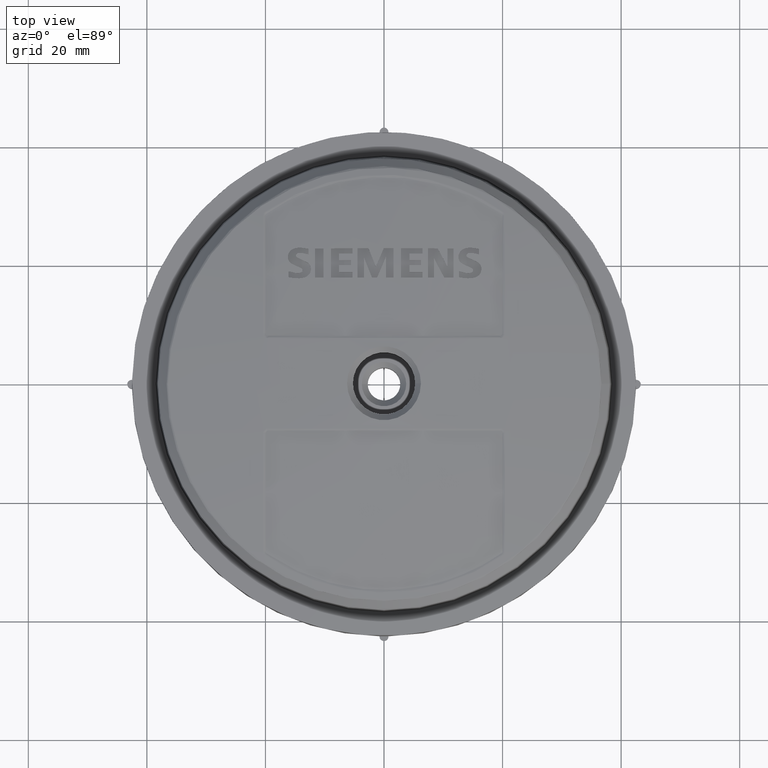
[diagram: clean part render]
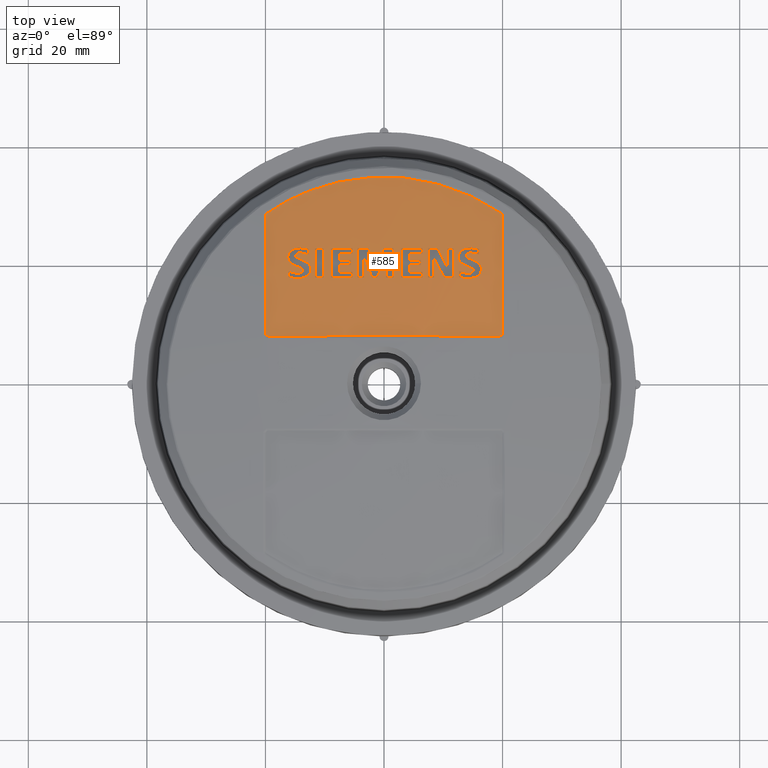
[diagram: same view with one face highlighted and labeled with its STEP entity id]
A machine part, top view. The second image highlights one B-rep face of the part: STEP entity #585.
In plain terms, the highlighted spherical surface has radius 226.9 mm.
Its self-contained STEP definition (entity closure, byte-faithful):
#37=(
BOUNDED_CURVE()
B_SPLINE_CURVE(3,(#4945,#4946,#4947,#4948),.UNSPECIFIED.,.F.,.F.)
B_SPLINE_CURVE_WITH_KNOTS((4,4),(0.,1.),.UNSPECIFIED.)
CURVE()
GEOMETRIC_REPRESENTATION_ITEM()
RATIONAL_B_SPLINE_CURVE((1.,0.99935727892616,0.99935727892616,1.))
REPRESENTATION_ITEM('')
);
#38=(
BOUNDED_CURVE()
B_SPLINE_CURVE(3,(#6578,#6579,#6580,#6581),.UNSPECIFIED.,.F.,.F.)
B_SPLINE_CURVE_WITH_KNOTS((4,4),(0.,1.),.UNSPECIFIED.)
CURVE()
GEOMETRIC_REPRESENTATION_ITEM()
RATIONAL_B_SPLINE_CURVE((1.,0.999998542568309,0.999998542568309,1.))
REPRESENTATION_ITEM('')
);
#39=(
BOUNDED_CURVE()
B_SPLINE_CURVE(3,(#6608,#6609,#6610,#6611),.UNSPECIFIED.,.F.,.F.)
B_SPLINE_CURVE_WITH_KNOTS((4,4),(0.,1.),.UNSPECIFIED.)
CURVE()
GEOMETRIC_REPRESENTATION_ITEM()
RATIONAL_B_SPLINE_CURVE((1.,0.999999021292975,0.999999021292975,1.))
REPRESENTATION_ITEM('')
);
#40=(
BOUNDED_CURVE()
B_SPLINE_CURVE(3,(#6638,#6639,#6640,#6641),.UNSPECIFIED.,.F.,.F.)
B_SPLINE_CURVE_WITH_KNOTS((4,4),(0.,1.),.UNSPECIFIED.)
CURVE()
GEOMETRIC_REPRESENTATION_ITEM()
RATIONAL_B_SPLINE_CURVE((1.,0.999998513696068,0.999998513696068,1.))
REPRESENTATION_ITEM('')
);
#41=(
BOUNDED_CURVE()
B_SPLINE_CURVE(3,(#6670,#6671,#6672,#6673),.UNSPECIFIED.,.F.,.F.)
B_SPLINE_CURVE_WITH_KNOTS((4,4),(0.,1.),.UNSPECIFIED.)
CURVE()
GEOMETRIC_REPRESENTATION_ITEM()
RATIONAL_B_SPLINE_CURVE((1.,0.999998665754237,0.999998665754237,1.))
REPRESENTATION_ITEM('')
);
#42=(
BOUNDED_CURVE()
B_SPLINE_CURVE(3,(#6686,#6687,#6688,#6689),.UNSPECIFIED.,.F.,.F.)
B_SPLINE_CURVE_WITH_KNOTS((4,4),(0.,1.),.UNSPECIFIED.)
CURVE()
GEOMETRIC_REPRESENTATION_ITEM()
RATIONAL_B_SPLINE_CURVE((1.,0.999997939629385,0.999997939629385,1.))
REPRESENTATION_ITEM('')
);
#43=(
BOUNDED_CURVE()
B_SPLINE_CURVE(3,(#6811,#6812,#6813,#6814),.UNSPECIFIED.,.F.,.F.)
B_SPLINE_CURVE_WITH_KNOTS((4,4),(0.,1.),.UNSPECIFIED.)
CURVE()
GEOMETRIC_REPRESENTATION_ITEM()
RATIONAL_B_SPLINE_CURVE((1.,0.999999021147129,0.999999021147129,1.))
REPRESENTATION_ITEM('')
);
#44=(
BOUNDED_CURVE()
B_SPLINE_CURVE(3,(#6841,#6842,#6843,#6844),.UNSPECIFIED.,.F.,.F.)
B_SPLINE_CURVE_WITH_KNOTS((4,4),(0.,1.),.UNSPECIFIED.)
CURVE()
GEOMETRIC_REPRESENTATION_ITEM()
RATIONAL_B_SPLINE_CURVE((1.,0.999998513297219,0.999998513297219,1.))
REPRESENTATION_ITEM('')
);
#45=(
BOUNDED_CURVE()
B_SPLINE_CURVE(3,(#6873,#6874,#6875,#6876),.UNSPECIFIED.,.F.,.F.)
B_SPLINE_CURVE_WITH_KNOTS((4,4),(0.,1.),.UNSPECIFIED.)
CURVE()
GEOMETRIC_REPRESENTATION_ITEM()
RATIONAL_B_SPLINE_CURVE((1.,0.999998665395193,0.999998665395193,1.))
REPRESENTATION_ITEM('')
);
#46=(
BOUNDED_CURVE()
B_SPLINE_CURVE(3,(#6889,#6890,#6891,#6892),.UNSPECIFIED.,.F.,.F.)
B_SPLINE_CURVE_WITH_KNOTS((4,4),(0.,1.),.UNSPECIFIED.)
CURVE()
GEOMETRIC_REPRESENTATION_ITEM()
RATIONAL_B_SPLINE_CURVE((1.,0.999997941199296,0.999997941199296,1.))
REPRESENTATION_ITEM('')
);
#47=(
BOUNDED_CURVE()
B_SPLINE_CURVE(3,(#7006,#7007,#7008,#7009),.UNSPECIFIED.,.F.,.F.)
B_SPLINE_CURVE_WITH_KNOTS((4,4),(0.,1.),.UNSPECIFIED.)
CURVE()
GEOMETRIC_REPRESENTATION_ITEM()
RATIONAL_B_SPLINE_CURVE((1.,0.999998545347857,0.999998545347857,1.))
REPRESENTATION_ITEM('')
);
#446=FACE_BOUND('',#887,.T.);
#447=FACE_BOUND('',#888,.T.);
#448=FACE_BOUND('',#889,.T.);
#449=FACE_BOUND('',#890,.T.);
#450=FACE_BOUND('',#891,.T.);
#451=FACE_BOUND('',#892,.T.);
#452=FACE_BOUND('',#893,.T.);
#453=FACE_BOUND('',#894,.T.);
#493=CIRCLE('',#2525,226.546736943447);
#494=CIRCLE('',#2526,225.754806658883);
#495=CIRCLE('',#2527,226.200729441794);
#496=CIRCLE('',#2528,226.200729441794);
#497=CIRCLE('',#2529,226.200729441794);
#498=CIRCLE('',#2530,226.200729441794);
#499=CIRCLE('',#2531,225.754806558031);
#500=CIRCLE('',#2532,225.754806658883);
#501=CIRCLE('',#2533,226.200729441794);
#585=ADVANCED_FACE('',(#446,#447,#448,#449,#450,#451,#452,#453),#707,.T.);
#707=SPHERICAL_SURFACE('',#2534,226.9);
#887=EDGE_LOOP('',(#1154,#1155,#1156,#1157));
#888=EDGE_LOOP('',(#1158,#1159,#1160,#1161));
#889=EDGE_LOOP('',(#1162,#1163,#1164,#1165,#1166,#1167,#1168,#1169,#1170,
#1171,#1172,#1173));
#890=EDGE_LOOP('',(#1174,#1175,#1176,#1177,#1178,#1179,#1180,#1181,#1182,
#1183,#1184,#1185,#1186));
#891=EDGE_LOOP('',(#1187,#1188,#1189,#1190,#1191,#1192,#1193,#1194,#1195,
#1196,#1197,#1198));
#892=EDGE_LOOP('',(#1199,#1200,#1201,#1202,#1203,#1204,#1205,#1206,#1207,
#1208));
#893=EDGE_LOOP('',(#1209,#1210,#1211,#1212));
#894=EDGE_LOOP('',(#1213,#1214,#1215,#1216,#1217,#1218,#1219,#1220,#1221,
#1222));
#1154=ORIENTED_EDGE('',*,*,#2078,.T.);
#1155=ORIENTED_EDGE('',*,*,#2079,.T.);
#1156=ORIENTED_EDGE('',*,*,#2080,.T.);
#1157=ORIENTED_EDGE('',*,*,#2081,.T.);
#1158=ORIENTED_EDGE('',*,*,#2082,.T.);
#1159=ORIENTED_EDGE('',*,*,#2083,.T.);
#1160=ORIENTED_EDGE('',*,*,#2084,.T.);
#1161=ORIENTED_EDGE('',*,*,#2085,.T.);
#1162=ORIENTED_EDGE('',*,*,#2086,.T.);
#1163=ORIENTED_EDGE('',*,*,#2087,.T.);
#1164=ORIENTED_EDGE('',*,*,#2088,.T.);
#1165=ORIENTED_EDGE('',*,*,#2089,.T.);
#1166=ORIENTED_EDGE('',*,*,#2090,.T.);
#1167=ORIENTED_EDGE('',*,*,#2091,.T.);
#1168=ORIENTED_EDGE('',*,*,#2092,.T.);
#1169=ORIENTED_EDGE('',*,*,#2093,.T.);
#1170=ORIENTED_EDGE('',*,*,#2094,.T.);
#1171=ORIENTED_EDGE('',*,*,#2095,.T.);
#1172=ORIENTED_EDGE('',*,*,#2096,.T.);
#1173=ORIENTED_EDGE('',*,*,#2097,.T.);
#1174=ORIENTED_EDGE('',*,*,#2098,.T.);
#1175=ORIENTED_EDGE('',*,*,#2099,.T.);
#1176=ORIENTED_EDGE('',*,*,#2100,.T.);
#1177=ORIENTED_EDGE('',*,*,#2101,.T.);
#1178=ORIENTED_EDGE('',*,*,#2102,.T.);
#1179=ORIENTED_EDGE('',*,*,#2103,.T.);
#1180=ORIENTED_EDGE('',*,*,#2104,.T.);
#1181=ORIENTED_EDGE('',*,*,#2105,.T.);
#1182=ORIENTED_EDGE('',*,*,#2106,.T.);
#1183=ORIENTED_EDGE('',*,*,#2107,.T.);
#1184=ORIENTED_EDGE('',*,*,#2108,.T.);
#1185=ORIENTED_EDGE('',*,*,#2109,.T.);
#1186=ORIENTED_EDGE('',*,*,#2110,.T.);
#1187=ORIENTED_EDGE('',*,*,#2111,.T.);
#1188=ORIENTED_EDGE('',*,*,#2112,.T.);
#1189=ORIENTED_EDGE('',*,*,#2113,.T.);
#1190=ORIENTED_EDGE('',*,*,#2114,.T.);
#1191=ORIENTED_EDGE('',*,*,#2115,.T.);
#1192=ORIENTED_EDGE('',*,*,#2116,.T.);
#1193=ORIENTED_EDGE('',*,*,#2117,.T.);
#1194=ORIENTED_EDGE('',*,*,#2118,.T.);
#1195=ORIENTED_EDGE('',*,*,#2119,.T.);
#1196=ORIENTED_EDGE('',*,*,#2120,.T.);
#1197=ORIENTED_EDGE('',*,*,#2121,.T.);
#1198=ORIENTED_EDGE('',*,*,#2122,.T.);
#1199=ORIENTED_EDGE('',*,*,#2123,.T.);
#1200=ORIENTED_EDGE('',*,*,#2124,.T.);
#1201=ORIENTED_EDGE('',*,*,#2125,.T.);
#1202=ORIENTED_EDGE('',*,*,#2126,.T.);
#1203=ORIENTED_EDGE('',*,*,#2127,.T.);
#1204=ORIENTED_EDGE('',*,*,#2128,.T.);
#1205=ORIENTED_EDGE('',*,*,#2129,.T.);
#1206=ORIENTED_EDGE('',*,*,#2130,.T.);
#1207=ORIENTED_EDGE('',*,*,#2131,.T.);
#1208=ORIENTED_EDGE('',*,*,#2132,.T.);
#1209=ORIENTED_EDGE('',*,*,#2133,.T.);
#1210=ORIENTED_EDGE('',*,*,#2134,.T.);
#1211=ORIENTED_EDGE('',*,*,#2135,.T.);
#1212=ORIENTED_EDGE('',*,*,#2136,.T.);
#1213=ORIENTED_EDGE('',*,*,#2014,.T.);
#1214=ORIENTED_EDGE('',*,*,#2013,.T.);
#1215=ORIENTED_EDGE('',*,*,#2063,.T.);
#1216=ORIENTED_EDGE('',*,*,#2065,.T.);
#1217=ORIENTED_EDGE('',*,*,#2068,.T.);
#1218=ORIENTED_EDGE('',*,*,#2070,.T.);
#1219=ORIENTED_EDGE('',*,*,#2071,.T.);
#1220=ORIENTED_EDGE('',*,*,#2008,.T.);
#1221=ORIENTED_EDGE('',*,*,#2007,.T.);
#1222=ORIENTED_EDGE('',*,*,#2062,.T.);
#1762=VERTEX_POINT('',#3270);
#1763=VERTEX_POINT('',#3271);
#1764=VERTEX_POINT('',#3282);
#1768=VERTEX_POINT('',#3454);
#1769=VERTEX_POINT('',#3455);
#1770=VERTEX_POINT('',#3466);
#1813=VERTEX_POINT('',#4160);
#1814=VERTEX_POINT('',#4289);
#1815=VERTEX_POINT('',#4434);
#1816=VERTEX_POINT('',#4792);
#1817=VERTEX_POINT('',#6547);
#1818=VERTEX_POINT('',#6548);
#1819=VERTEX_POINT('',#6550);
#1820=VERTEX_POINT('',#6577);
#1821=VERTEX_POINT('',#6583);
#1822=VERTEX_POINT('',#6584);
#1823=VERTEX_POINT('',#6595);
#1824=VERTEX_POINT('',#6597);
#1825=VERTEX_POINT('',#6612);
#1826=VERTEX_POINT('',#6613);
#1827=VERTEX_POINT('',#6621);
#1828=VERTEX_POINT('',#6626);
#1829=VERTEX_POINT('',#6637);
#1830=VERTEX_POINT('',#6642);
#1831=VERTEX_POINT('',#6653);
#1832=VERTEX_POINT('',#6664);
#1833=VERTEX_POINT('',#6669);
#1834=VERTEX_POINT('',#6674);
#1835=VERTEX_POINT('',#6685);
#1836=VERTEX_POINT('',#6690);
#1837=VERTEX_POINT('',#6708);
#1838=VERTEX_POINT('',#6709);
#1839=VERTEX_POINT('',#6711);
#1840=VERTEX_POINT('',#6725);
#1841=VERTEX_POINT('',#6736);
#1842=VERTEX_POINT('',#6738);
#1843=VERTEX_POINT('',#6749);
#1844=VERTEX_POINT('',#6757);
#1845=VERTEX_POINT('',#6768);
#1846=VERTEX_POINT('',#6779);
#1847=VERTEX_POINT('',#6790);
#1848=VERTEX_POINT('',#6801);
#1849=VERTEX_POINT('',#6806);
#1850=VERTEX_POINT('',#6815);
#1851=VERTEX_POINT('',#6816);
#1852=VERTEX_POINT('',#6824);
#1853=VERTEX_POINT('',#6829);
#1854=VERTEX_POINT('',#6840);
#1855=VERTEX_POINT('',#6845);
#1856=VERTEX_POINT('',#6856);
#1857=VERTEX_POINT('',#6867);
#1858=VERTEX_POINT('',#6872);
#1859=VERTEX_POINT('',#6877);
#1860=VERTEX_POINT('',#6888);
#1861=VERTEX_POINT('',#6893);
#1862=VERTEX_POINT('',#6914);
#1863=VERTEX_POINT('',#6915);
#1864=VERTEX_POINT('',#6926);
#1865=VERTEX_POINT('',#6928);
#1866=VERTEX_POINT('',#6939);
#1867=VERTEX_POINT('',#6941);
#1868=VERTEX_POINT('',#6952);
#1869=VERTEX_POINT('',#6963);
#1870=VERTEX_POINT('',#6965);
#1871=VERTEX_POINT('',#6976);
#1872=VERTEX_POINT('',#7004);
#1873=VERTEX_POINT('',#7005);
#1874=VERTEX_POINT('',#7010);
#1875=VERTEX_POINT('',#7041);
#2007=EDGE_CURVE('',#1762,#1763,#2369,.T.);
#2008=EDGE_CURVE('',#1764,#1762,#2370,.T.);
#2013=EDGE_CURVE('',#1768,#1769,#2375,.T.);
#2014=EDGE_CURVE('',#1770,#1768,#2376,.T.);
#2062=EDGE_CURVE('',#1763,#1770,#2396,.T.);
#2063=EDGE_CURVE('',#1769,#1813,#2397,.T.);
#2065=EDGE_CURVE('',#1813,#1814,#2399,.T.);
#2068=EDGE_CURVE('',#1814,#1815,#2402,.T.);
#2070=EDGE_CURVE('',#1815,#1816,#2404,.T.);
#2071=EDGE_CURVE('',#1816,#1764,#37,.T.);
#2078=EDGE_CURVE('',#1817,#1818,#2411,.T.);
#2079=EDGE_CURVE('',#1818,#1819,#493,.T.);
#2080=EDGE_CURVE('',#1819,#1820,#2412,.T.);
#2081=EDGE_CURVE('',#1820,#1817,#38,.T.);
#2082=EDGE_CURVE('',#1821,#1822,#494,.T.);
#2083=EDGE_CURVE('',#1822,#1823,#2413,.T.);
#2084=EDGE_CURVE('',#1823,#1824,#495,.T.);
#2085=EDGE_CURVE('',#1824,#1821,#2414,.T.);
#2086=EDGE_CURVE('',#1825,#1826,#39,.T.);
#2087=EDGE_CURVE('',#1826,#1827,#2415,.T.);
#2088=EDGE_CURVE('',#1827,#1828,#2416,.T.);
#2089=EDGE_CURVE('',#1828,#1829,#2417,.T.);
#2090=EDGE_CURVE('',#1829,#1830,#40,.T.);
#2091=EDGE_CURVE('',#1830,#1831,#2418,.T.);
#2092=EDGE_CURVE('',#1831,#1832,#2419,.T.);
#2093=EDGE_CURVE('',#1832,#1833,#2420,.T.);
#2094=EDGE_CURVE('',#1833,#1834,#41,.T.);
#2095=EDGE_CURVE('',#1834,#1835,#2421,.T.);
#2096=EDGE_CURVE('',#1835,#1836,#42,.T.);
#2097=EDGE_CURVE('',#1836,#1825,#2422,.T.);
#2098=EDGE_CURVE('',#1837,#1838,#2423,.T.);
#2099=EDGE_CURVE('',#1838,#1839,#496,.T.);
#2100=EDGE_CURVE('',#1839,#1840,#2424,.T.);
#2101=EDGE_CURVE('',#1840,#1841,#2425,.T.);
#2102=EDGE_CURVE('',#1841,#1842,#497,.T.);
#2103=EDGE_CURVE('',#1842,#1843,#2426,.T.);
#2104=EDGE_CURVE('',#1843,#1844,#2427,.T.);
#2105=EDGE_CURVE('',#1844,#1845,#2428,.T.);
#2106=EDGE_CURVE('',#1845,#1846,#2429,.T.);
#2107=EDGE_CURVE('',#1846,#1847,#2430,.T.);
#2108=EDGE_CURVE('',#1847,#1848,#2431,.T.);
#2109=EDGE_CURVE('',#1848,#1849,#2432,.T.);
#2110=EDGE_CURVE('',#1849,#1837,#2433,.T.);
#2111=EDGE_CURVE('',#1850,#1851,#43,.T.);
#2112=EDGE_CURVE('',#1851,#1852,#2434,.T.);
#2113=EDGE_CURVE('',#1852,#1853,#2435,.T.);
#2114=EDGE_CURVE('',#1853,#1854,#2436,.T.);
#2115=EDGE_CURVE('',#1854,#1855,#44,.T.);
#2116=EDGE_CURVE('',#1855,#1856,#2437,.T.);
#2117=EDGE_CURVE('',#1856,#1857,#2438,.T.);
#2118=EDGE_CURVE('',#1857,#1858,#2439,.T.);
#2119=EDGE_CURVE('',#1858,#1859,#45,.T.);
#2120=EDGE_CURVE('',#1859,#1860,#2440,.T.);
#2121=EDGE_CURVE('',#1860,#1861,#46,.T.);
#2122=EDGE_CURVE('',#1861,#1850,#2441,.T.);
#2123=EDGE_CURVE('',#1862,#1863,#2442,.T.);
#2124=EDGE_CURVE('',#1863,#1864,#2443,.T.);
#2125=EDGE_CURVE('',#1864,#1865,#498,.T.);
#2126=EDGE_CURVE('',#1865,#1866,#2444,.T.);
#2127=EDGE_CURVE('',#1866,#1867,#499,.T.);
#2128=EDGE_CURVE('',#1867,#1868,#2445,.T.);
#2129=EDGE_CURVE('',#1868,#1869,#2446,.T.);
#2130=EDGE_CURVE('',#1869,#1870,#500,.T.);
#2131=EDGE_CURVE('',#1870,#1871,#2447,.T.);
#2132=EDGE_CURVE('',#1871,#1862,#501,.T.);
#2133=EDGE_CURVE('',#1872,#1873,#2448,.T.);
#2134=EDGE_CURVE('',#1873,#1874,#47,.T.);
#2135=EDGE_CURVE('',#1874,#1875,#2449,.T.);
#2136=EDGE_CURVE('',#1875,#1872,#2450,.T.);
#2369=B_SPLINE_CURVE_WITH_KNOTS('',3,(#3266,#3267,#3268,#3269),
 .UNSPECIFIED.,.F.,.F.,(4,4),(0.,1.),.UNSPECIFIED.);
#2370=B_SPLINE_CURVE_WITH_KNOTS('',3,(#3272,#3273,#3274,#3275,#3276,#3277,
#3278,#3279,#3280,#3281),.UNSPECIFIED.,.F.,.F.,(4,3,3,4),(0.,0.419088184925764,
0.838086367885473,1.),.UNSPECIFIED.);
#2375=B_SPLINE_CURVE_WITH_KNOTS('',3,(#3450,#3451,#3452,#3453),
 .UNSPECIFIED.,.F.,.F.,(4,4),(0.,1.),.UNSPECIFIED.);
#2376=B_SPLINE_CURVE_WITH_KNOTS('',3,(#3456,#3457,#3458,#3459,#3460,#3461,
#3462,#3463,#3464,#3465),.UNSPECIFIED.,.F.,.F.,(4,3,3,4),(0.,0.441978206379152,
0.884128081038166,1.),.UNSPECIFIED.);
#2396=B_SPLINE_CURVE_WITH_KNOTS('',3,(#4008,#4009,#4010,#4011),
 .UNSPECIFIED.,.F.,.F.,(4,4),(0.,1.),.UNSPECIFIED.);
#2397=B_SPLINE_CURVE_WITH_KNOTS('',3,(#4156,#4157,#4158,#4159),
 .UNSPECIFIED.,.F.,.F.,(4,4),(0.,1.),.UNSPECIFIED.);
#2399=B_SPLINE_CURVE_WITH_KNOTS('',3,(#4270,#4271,#4272,#4273,#4274,#4275,
#4276,#4277,#4278,#4279,#4280,#4281,#4282,#4283,#4284,#4285,#4286,#4287,
#4288),.UNSPECIFIED.,.F.,.F.,(4,3,3,3,3,3,4),(0.,0.171911207652752,0.521941616360501,
0.607045075859719,0.775115483204476,0.886873827750161,1.),.UNSPECIFIED.);
#2402=B_SPLINE_CURVE_WITH_KNOTS('',3,(#4435,#4436,#4437,#4438,#4439,#4440,
#4441,#4442,#4443,#4444),.UNSPECIFIED.,.F.,.F.,(4,2,2,2,4),(0.,0.25,0.5,
0.75,1.),.UNSPECIFIED.);
#2404=B_SPLINE_CURVE_WITH_KNOTS('',3,(#4793,#4794,#4795,#4796,#4797,#4798,
#4799,#4800,#4801,#4802,#4803,#4804,#4805,#4806,#4807,#4808,#4809,#4810,
#4811,#4812,#4813,#4814),.UNSPECIFIED.,.F.,.F.,(4,3,3,3,3,3,3,4),(0.,0.0842987829420168,
0.253769605812666,0.421699731761135,0.50522337370933,0.588745418439652,
0.756627086799481,1.),.UNSPECIFIED.);
#2411=B_SPLINE_CURVE_WITH_KNOTS('',3,(#6519,#6520,#6521,#6522,#6523,#6524,
#6525,#6526,#6527,#6528,#6529,#6530,#6531,#6532,#6533,#6534,#6535,#6536,
#6537,#6538,#6539,#6540,#6541,#6542,#6543,#6544,#6545,#6546),
 .UNSPECIFIED.,.F.,.F.,(4,2,2,2,2,2,2,2,2,2,2,2,2,4),(0.,0.125,0.1875,0.21875,
0.25,0.3125,0.375,0.4375,0.5,0.5625,0.625,0.75,0.875,1.),.UNSPECIFIED.);
#2412=B_SPLINE_CURVE_WITH_KNOTS('',3,(#6551,#6552,#6553,#6554,#6555,#6556,
#6557,#6558,#6559,#6560,#6561,#6562,#6563,#6564,#6565,#6566,#6567,#6568,
#6569,#6570,#6571,#6572,#6573,#6574,#6575,#6576),.UNSPECIFIED.,.F.,.F.,
(4,2,2,2,2,2,2,2,2,2,2,2,4),(0.,0.124999999999999,0.187499999999999,0.218749999999999,
0.25,0.28125,0.3125,0.375,0.5,0.625,0.75,0.875,1.),.UNSPECIFIED.);
#2413=B_SPLINE_CURVE_WITH_KNOTS('',3,(#6585,#6586,#6587,#6588,#6589,#6590,
#6591,#6592,#6593,#6594),.UNSPECIFIED.,.F.,.F.,(4,3,3,4),(0.,0.193216631715893,
0.596592445133397,1.),.UNSPECIFIED.);
#2414=B_SPLINE_CURVE_WITH_KNOTS('',3,(#6598,#6599,#6600,#6601,#6602,#6603,
#6604,#6605,#6606,#6607),.UNSPECIFIED.,.F.,.F.,(4,3,3,4),(0.,0.193451458993747,
0.5967098666642,1.),.UNSPECIFIED.);
#2415=B_SPLINE_CURVE_WITH_KNOTS('',3,(#6614,#6615,#6616,#6617,#6618,#6619,
#6620),.UNSPECIFIED.,.F.,.F.,(4,3,4),(0.,0.49060112877876,1.),
 .UNSPECIFIED.);
#2416=B_SPLINE_CURVE_WITH_KNOTS('',3,(#6622,#6623,#6624,#6625),
 .UNSPECIFIED.,.F.,.F.,(4,4),(0.,1.),.UNSPECIFIED.);
#2417=B_SPLINE_CURVE_WITH_KNOTS('',3,(#6627,#6628,#6629,#6630,#6631,#6632,
#6633,#6634,#6635,#6636),.UNSPECIFIED.,.F.,.F.,(4,3,3,4),(0.,0.43343553399471,
0.716716669709179,1.),.UNSPECIFIED.);
#2418=B_SPLINE_CURVE_WITH_KNOTS('',3,(#6643,#6644,#6645,#6646,#6647,#6648,
#6649,#6650,#6651,#6652),.UNSPECIFIED.,.F.,.F.,(4,3,3,4),(0.,0.166880683665713,
0.500643836565606,1.),.UNSPECIFIED.);
#2419=B_SPLINE_CURVE_WITH_KNOTS('',3,(#6654,#6655,#6656,#6657,#6658,#6659,
#6660,#6661,#6662,#6663),.UNSPECIFIED.,.F.,.F.,(4,3,3,4),(0.,0.19339375621567,
0.596681020817162,1.),.UNSPECIFIED.);
#2420=B_SPLINE_CURVE_WITH_KNOTS('',3,(#6665,#6666,#6667,#6668),
 .UNSPECIFIED.,.F.,.F.,(4,4),(0.,1.),.UNSPECIFIED.);
#2421=B_SPLINE_CURVE_WITH_KNOTS('',3,(#6675,#6676,#6677,#6678,#6679,#6680,
#6681,#6682,#6683,#6684),.UNSPECIFIED.,.F.,.F.,(4,3,3,4),(0.,0.433771106710956,
0.716884455408462,1.),.UNSPECIFIED.);
#2422=B_SPLINE_CURVE_WITH_KNOTS('',3,(#6691,#6692,#6693,#6694,#6695,#6696,
#6697),.UNSPECIFIED.,.F.,.F.,(4,3,4),(0.,0.490696950199614,1.),
 .UNSPECIFIED.);
#2423=B_SPLINE_CURVE_WITH_KNOTS('',3,(#6698,#6699,#6700,#6701,#6702,#6703,
#6704,#6705,#6706,#6707),.UNSPECIFIED.,.F.,.F.,(4,3,3,4),(0.,0.247616855397191,
0.623800607273194,1.),.UNSPECIFIED.);
#2424=B_SPLINE_CURVE_WITH_KNOTS('',3,(#6712,#6713,#6714,#6715,#6716,#6717,
#6718,#6719,#6720,#6721,#6722,#6723,#6724),.UNSPECIFIED.,.F.,.F.,(4,3,3,
3,4),(0.,0.162155447627462,0.486468064942422,0.743231753481202,1.),
 .UNSPECIFIED.);
#2425=B_SPLINE_CURVE_WITH_KNOTS('',3,(#6726,#6727,#6728,#6729,#6730,#6731,
#6732,#6733,#6734,#6735),.UNSPECIFIED.,.F.,.F.,(4,3,3,4),(0.,0.174823716019264,
0.524473003746149,1.),.UNSPECIFIED.);
#2426=B_SPLINE_CURVE_WITH_KNOTS('',3,(#6739,#6740,#6741,#6742,#6743,#6744,
#6745,#6746,#6747,#6748),.UNSPECIFIED.,.F.,.F.,(4,3,3,4),(0.,0.193332930669709,
0.596650610260893,1.),.UNSPECIFIED.);
#2427=B_SPLINE_CURVE_WITH_KNOTS('',3,(#6750,#6751,#6752,#6753,#6754,#6755,
#6756),.UNSPECIFIED.,.F.,.F.,(4,3,4),(0.,0.533090057152619,1.),
 .UNSPECIFIED.);
#2428=B_SPLINE_CURVE_WITH_KNOTS('',3,(#6758,#6759,#6760,#6761,#6762,#6763,
#6764,#6765,#6766,#6767),.UNSPECIFIED.,.F.,.F.,(4,3,3,4),(0.,0.285744181027817,
0.571488362050871,1.),.UNSPECIFIED.);
#2429=B_SPLINE_CURVE_WITH_KNOTS('',3,(#6769,#6770,#6771,#6772,#6773,#6774,
#6775,#6776,#6777,#6778),.UNSPECIFIED.,.F.,.F.,(4,3,3,4),(0.,0.177803920060963,
0.533413670266232,1.),.UNSPECIFIED.);
#2430=B_SPLINE_CURVE_WITH_KNOTS('',3,(#6780,#6781,#6782,#6783,#6784,#6785,
#6786,#6787,#6788,#6789),.UNSPECIFIED.,.F.,.F.,(4,3,3,4),(0.,0.287055238053892,
0.574110595291825,1.),.UNSPECIFIED.);
#2431=B_SPLINE_CURVE_WITH_KNOTS('',3,(#6791,#6792,#6793,#6794,#6795,#6796,
#6797,#6798,#6799,#6800),.UNSPECIFIED.,.F.,.F.,(4,3,3,4),(0.,0.193098231908817,
0.596533247497277,1.),.UNSPECIFIED.);
#2432=B_SPLINE_CURVE_WITH_KNOTS('',3,(#6802,#6803,#6804,#6805),
 .UNSPECIFIED.,.F.,.F.,(4,4),(0.,1.),.UNSPECIFIED.);
#2433=B_SPLINE_CURVE_WITH_KNOTS('',3,(#6807,#6808,#6809,#6810),
 .UNSPECIFIED.,.F.,.F.,(4,4),(0.,1.),.UNSPECIFIED.);
#2434=B_SPLINE_CURVE_WITH_KNOTS('',3,(#6817,#6818,#6819,#6820,#6821,#6822,
#6823),.UNSPECIFIED.,.F.,.F.,(4,3,4),(0.,0.490624325359305,1.),
 .UNSPECIFIED.);
#2435=B_SPLINE_CURVE_WITH_KNOTS('',3,(#6825,#6826,#6827,#6828),
 .UNSPECIFIED.,.F.,.F.,(4,4),(0.,1.),.UNSPECIFIED.);
#2436=B_SPLINE_CURVE_WITH_KNOTS('',3,(#6830,#6831,#6832,#6833,#6834,#6835,
#6836,#6837,#6838,#6839),.UNSPECIFIED.,.F.,.F.,(4,3,3,4),(0.,0.433451016849081,
0.716724411095513,1.),.UNSPECIFIED.);
#2437=B_SPLINE_CURVE_WITH_KNOTS('',3,(#6846,#6847,#6848,#6849,#6850,#6851,
#6852,#6853,#6854,#6855),.UNSPECIFIED.,.F.,.F.,(4,3,3,4),(0.,0.166866192639165,
0.500600367781933,1.),.UNSPECIFIED.);
#2438=B_SPLINE_CURVE_WITH_KNOTS('',3,(#6857,#6858,#6859,#6860,#6861,#6862,
#6863,#6864,#6865,#6866),.UNSPECIFIED.,.F.,.F.,(4,3,3,4),(0.,0.193321870968052,
0.596645080112788,1.),.UNSPECIFIED.);
#2439=B_SPLINE_CURVE_WITH_KNOTS('',3,(#6868,#6869,#6870,#6871),
 .UNSPECIFIED.,.F.,.F.,(4,4),(0.,1.),.UNSPECIFIED.);
#2440=B_SPLINE_CURVE_WITH_KNOTS('',3,(#6878,#6879,#6880,#6881,#6882,#6883,
#6884,#6885,#6886,#6887),.UNSPECIFIED.,.F.,.F.,(4,3,3,4),(0.,0.433787759495236,
0.716892781926343,1.),.UNSPECIFIED.);
#2441=B_SPLINE_CURVE_WITH_KNOTS('',3,(#6894,#6895,#6896,#6897,#6898,#6899,
#6900),.UNSPECIFIED.,.F.,.F.,(4,3,4),(0.,0.490719010886112,1.),
 .UNSPECIFIED.);
#2442=B_SPLINE_CURVE_WITH_KNOTS('',3,(#6901,#6902,#6903,#6904,#6905,#6906,
#6907,#6908,#6909,#6910,#6911,#6912,#6913),.UNSPECIFIED.,.F.,.F.,(4,3,3,
3,4),(0.,0.160247264707267,0.480743506430735,0.740369347276916,1.),
 .UNSPECIFIED.);
#2443=B_SPLINE_CURVE_WITH_KNOTS('',3,(#6916,#6917,#6918,#6919,#6920,#6921,
#6922,#6923,#6924,#6925),.UNSPECIFIED.,.F.,.F.,(4,3,3,4),(0.,0.181048256500709,
0.543146761092949,1.),.UNSPECIFIED.);
#2444=B_SPLINE_CURVE_WITH_KNOTS('',3,(#6929,#6930,#6931,#6932,#6933,#6934,
#6935,#6936,#6937,#6938),.UNSPECIFIED.,.F.,.F.,(4,3,3,4),(0.,0.193368539958999,
0.59666841442626,1.),.UNSPECIFIED.);
#2445=B_SPLINE_CURVE_WITH_KNOTS('',3,(#6942,#6943,#6944,#6945,#6946,#6947,
#6948,#6949,#6950,#6951),.UNSPECIFIED.,.F.,.F.,(4,3,3,4),(0.,0.168833229660736,
0.506501497286569,1.),.UNSPECIFIED.);
#2446=B_SPLINE_CURVE_WITH_KNOTS('',3,(#6953,#6954,#6955,#6956,#6957,#6958,
#6959,#6960,#6961,#6962),.UNSPECIFIED.,.F.,.F.,(4,3,3,4),(0.,0.190748539301421,
0.595367815953367,1.),.UNSPECIFIED.);
#2447=B_SPLINE_CURVE_WITH_KNOTS('',3,(#6966,#6967,#6968,#6969,#6970,#6971,
#6972,#6973,#6974,#6975),.UNSPECIFIED.,.F.,.F.,(4,3,3,4),(0.,0.193255453066855,
0.59661185123178,1.),.UNSPECIFIED.);
#2448=B_SPLINE_CURVE_WITH_KNOTS('',3,(#6978,#6979,#6980,#6981,#6982,#6983,
#6984,#6985,#6986,#6987,#6988,#6989,#6990,#6991,#6992,#6993,#6994,#6995,
#6996,#6997,#6998,#6999,#7000,#7001,#7002,#7003),.UNSPECIFIED.,.F.,.F.,
(4,2,2,2,2,2,2,2,2,2,2,2,4),(0.,0.124999999999997,0.187499999999996,0.218749999999996,
0.249999999999996,0.281249999999996,0.312499999999995,0.374999999999995,
0.499999999999996,0.624999999999997,0.749999999999998,0.874999999999999,
1.),.UNSPECIFIED.);
#2449=B_SPLINE_CURVE_WITH_KNOTS('',3,(#7011,#7012,#7013,#7014,#7015,#7016,
#7017,#7018,#7019,#7020,#7021,#7022,#7023,#7024,#7025,#7026,#7027,#7028,
#7029,#7030,#7031,#7032,#7033,#7034,#7035,#7036,#7037,#7038,#7039,#7040),
 .UNSPECIFIED.,.F.,.F.,(4,2,2,2,2,2,2,2,2,2,2,2,2,2,4),(0.,0.125,0.187499999999999,
0.218749999999999,0.249999999999999,0.281249999999999,0.312499999999998,
0.374999999999998,0.437499999999998,0.499999999999999,0.562499999999999,
0.624999999999999,0.749999999999999,0.875,1.),.UNSPECIFIED.);
#2450=B_SPLINE_CURVE_WITH_KNOTS('',3,(#7042,#7043,#7044,#7045),
 .UNSPECIFIED.,.F.,.F.,(4,4),(0.,1.),.UNSPECIFIED.);
#2525=AXIS2_PLACEMENT_3D('',#6549,#2748,#2749);
#2526=AXIS2_PLACEMENT_3D('',#6582,#2750,#2751);
#2527=AXIS2_PLACEMENT_3D('',#6596,#2752,#2753);
#2528=AXIS2_PLACEMENT_3D('',#6710,#2754,#2755);
#2529=AXIS2_PLACEMENT_3D('',#6737,#2756,#2757);
#2530=AXIS2_PLACEMENT_3D('',#6927,#2758,#2759);
#2531=AXIS2_PLACEMENT_3D('',#6940,#2760,#2761);
#2532=AXIS2_PLACEMENT_3D('',#6964,#2762,#2763);
#2533=AXIS2_PLACEMENT_3D('',#6977,#2764,#2765);
#2534=AXIS2_PLACEMENT_3D('',#7046,#2766,#2767);
#2748=DIRECTION('',(-1.,6.01347202837658E-16,6.32877623736556E-15));
#2749=DIRECTION('',(-6.33254018128253E-15,0.,-1.));
#2750=DIRECTION('',(0.,1.,0.));
#2751=DIRECTION('',(0.,0.,-1.));
#2752=DIRECTION('',(0.,-1.,0.));
#2753=DIRECTION('',(0.,0.,1.));
#2754=DIRECTION('',(0.,-1.,0.));
#2755=DIRECTION('',(0.,0.,1.));
#2756=DIRECTION('',(0.,-1.,0.));
#2757=DIRECTION('',(0.,0.,1.));
#2758=DIRECTION('',(0.,-1.,0.));
#2759=DIRECTION('',(0.,0.,1.));
#2760=DIRECTION('',(0.,1.,0.));
#2761=DIRECTION('',(0.,0.,-1.));
#2762=DIRECTION('',(0.,1.,0.));
#2763=DIRECTION('',(0.,0.,-1.));
#2764=DIRECTION('',(0.,-1.,0.));
#2765=DIRECTION('',(0.,0.,1.));
#2766=DIRECTION('',(1.,-5.91899234484373E-16,-6.23858244335423E-15));
#2767=DIRECTION('',(6.34577210855719E-15,0.154297032578918,0.98802450664816));
#3266=CARTESIAN_POINT('',(-19.8470637505974,8.14007534766662,13.6136940414561));
#3267=CARTESIAN_POINT('',(-19.7503346530607,8.04694206416938,13.6255492597876));
#3268=CARTESIAN_POINT('',(-19.6346721866843,8.00095633293519,13.6372654859226));
#3269=CARTESIAN_POINT('',(-19.5000689007118,8.00213416157722,13.6488419803176));
#3270=CARTESIAN_POINT('',(-19.8470636043432,8.14007543958509,13.6136937896215));
#3271=CARTESIAN_POINT('',(-19.5001564162433,8.00128500095652,13.6501134970008));
#3272=CARTESIAN_POINT('',(-19.9999980296878,8.49999996247149,13.5869448179929));
#3273=CARTESIAN_POINT('',(-20.00003728215,8.44411876281474,13.5890443998596));
#3274=CARTESIAN_POINT('',(-19.9903256694331,8.38751151235723,13.5920146403075));
#3275=CARTESIAN_POINT('',(-19.9719050769362,8.33483290687071,13.5955873921756));
#3276=CARTESIAN_POINT('',(-19.9534888131444,8.28216668047242,13.5991593044731));
#3277=CARTESIAN_POINT('',(-19.9257481522651,8.23200541354209,13.6034419383846));
#3278=CARTESIAN_POINT('',(-19.8910338539009,8.18842713061969,13.6080786914694));
#3279=CARTESIAN_POINT('',(-19.8774571832143,8.17138377891148,13.6098921133922));
#3280=CARTESIAN_POINT('',(-19.8627436174488,8.15519273331862,13.6117715654815));
#3281=CARTESIAN_POINT('',(-19.8470648128811,8.14007421161941,13.6136939890588));
#3282=CARTESIAN_POINT('',(-19.9999980296878,8.49999996247149,13.5869448179929));
#3450=CARTESIAN_POINT('',(19.8470504929271,8.14009049635047,13.6136946604215));
#3451=CARTESIAN_POINT('',(19.9496447757447,8.23577513353265,13.6012321605436));
#3452=CARTESIAN_POINT('',(19.9999089844359,8.35571971786613,13.5923838098273));
#3453=CARTESIAN_POINT('',(19.9978523391292,8.49994142623562,13.5871382479931));
#3454=CARTESIAN_POINT('',(19.8470494869868,8.14009081057165,13.6136885866794));
#3455=CARTESIAN_POINT('',(19.9988595879638,8.50000475639676,13.588311136231));
#3456=CARTESIAN_POINT('',(19.4999999295446,8.0000012048693,13.6489234735992));
#3457=CARTESIAN_POINT('',(19.5562235513001,8.00001778322577,13.6440699924021));
#3458=CARTESIAN_POINT('',(19.6131671264276,8.00983807366376,13.6387854731569));
#3459=CARTESIAN_POINT('',(19.6661744026358,8.02846702694925,13.6335088296825));
#3460=CARTESIAN_POINT('',(19.7191867238093,8.04709775324462,13.6282316840037));
#3461=CARTESIAN_POINT('',(19.7696607799004,8.07524605424047,13.622815510077));
#3462=CARTESIAN_POINT('',(19.8134595680816,8.1104717257265,13.617708980215));
#3463=CARTESIAN_POINT('',(19.8250911900357,8.11982658942978,13.6163528416706));
#3464=CARTESIAN_POINT('',(19.8363176009626,8.12971180720302,13.6150117086411));
#3465=CARTESIAN_POINT('',(19.8470652800422,8.14007510937952,13.6136939156599));
#3466=CARTESIAN_POINT('',(19.4999993494484,7.99999841781948,13.6489167441385));
#4008=CARTESIAN_POINT('',(-19.5000533862878,7.99997452092522,13.6489198044214));
#4009=CARTESIAN_POINT('',(-6.52454559304555,7.99994495857884,14.7688938703362));
#4010=CARTESIAN_POINT('',(6.52449186434798,7.99994423728687,14.7688954450341));
#4011=CARTESIAN_POINT('',(19.5000000130206,7.99997395447876,13.6489244313543));
#4156=CARTESIAN_POINT('',(19.9999997733507,8.49995344141074,13.5869476473105));
#4157=CARTESIAN_POINT('',(20.0000056664273,15.1133423156785,13.3380572945083));
#4158=CARTESIAN_POINT('',(19.9999865069288,21.7124152354046,12.7988348536956));
#4159=CARTESIAN_POINT('',(20.00000050157,28.2784810583087,11.9708024623801));
#4160=CARTESIAN_POINT('',(20.000000253606,28.2784810446475,11.9708023540464));
#4270=CARTESIAN_POINT('',(20.000000253606,28.2784810446475,11.9708023540464));
#4271=CARTESIAN_POINT('',(19.9999993822355,28.3060802616041,11.9673219593192));
#4272=CARTESIAN_POINT('',(19.9976792008065,28.3337965970439,11.9640285746322));
#4273=CARTESIAN_POINT('',(19.9931194693462,28.36106892052,11.9609856901361));
#4274=CARTESIAN_POINT('',(19.9839359606616,28.4159966331869,11.9548571809379));
#4275=CARTESIAN_POINT('',(19.9651351465821,28.470213883032,11.9496544439899));
#4276=CARTESIAN_POINT('',(19.9382284938528,28.519206164981,11.9458155087332));
#4277=CARTESIAN_POINT('',(19.9315978258916,28.5312794450555,11.9448694711391));
#4278=CARTESIAN_POINT('',(19.9244597777027,28.5430938130923,11.9440002068751));
#4279=CARTESIAN_POINT('',(19.916849354714,28.5545866773293,11.9432125711341));
#4280=CARTESIAN_POINT('',(19.9018582267331,28.5772254976551,11.9416610741656));
#4281=CARTESIAN_POINT('',(19.884940355567,28.5987233955493,11.9404210487498));
#4282=CARTESIAN_POINT('',(19.8664202343976,28.6186194984393,11.939522467432));
#4283=CARTESIAN_POINT('',(19.8540810860147,28.6318754033848,11.9389237819206));
#4284=CARTESIAN_POINT('',(19.8409944882615,28.6444789418442,11.9384723916541));
#4285=CARTESIAN_POINT('',(19.8272862110568,28.6563247888291,11.9381706162869));
#4286=CARTESIAN_POINT('',(19.8134104392292,28.6683153743283,11.9378651536766));
#4287=CARTESIAN_POINT('',(19.7988555470801,28.6795662200883,11.9377120369814));
#4288=CARTESIAN_POINT('',(19.7837562353707,28.6899784858233,11.9377120076437));
#4289=CARTESIAN_POINT('',(19.7838034357085,28.6900469332919,11.9377331037051));
#4434=CARTESIAN_POINT('',(-19.783834502555,28.690091591061,11.9377271906276));
#4435=CARTESIAN_POINT('',(19.7837222793886,28.6899293214877,11.9377212950083));
#4436=CARTESIAN_POINT('',(16.8959033795943,30.682644359145,11.9375471418554));
#4437=CARTESIAN_POINT('',(13.710369773119,32.2308633883251,11.9377474689504));
#4438=CARTESIAN_POINT('',(7.01169966861914,34.3177499448557,11.9375933719744));
#4439=CARTESIAN_POINT('',(3.50618372458667,34.8501974593633,11.9376572901331));
#4440=CARTESIAN_POINT('',(-3.50614055383358,34.8475091972146,11.9380758045163));
#4441=CARTESIAN_POINT('',(-7.01277748654575,34.3165210309873,11.9376954451621));
#4442=CARTESIAN_POINT('',(-13.7054986902695,32.2330323232787,11.9376811651958));
#4443=CARTESIAN_POINT('',(-16.8954729159737,30.6818383151562,11.9376882718695));
#4444=CARTESIAN_POINT('',(-19.78384320889,28.6901042168027,11.937688244438));
#4792=CARTESIAN_POINT('',(-20.0000004930788,28.2784809518485,11.9708021987276));
#4793=CARTESIAN_POINT('',(-19.7837489596377,28.6899675480275,11.9377140492611));
#4794=CARTESIAN_POINT('',(-19.7949848977403,28.682218979609,11.9377141259655));
#4795=CARTESIAN_POINT('',(-19.8059167171538,28.6740092759711,11.9377987968335));
#4796=CARTESIAN_POINT('',(-19.8164888191202,28.6653785921376,11.9379678357823));
#4797=CARTESIAN_POINT('',(-19.8376877246532,28.6480725680514,11.938306788312));
#4798=CARTESIAN_POINT('',(-19.8575436518645,28.6289776098168,11.938988111846));
#4799=CARTESIAN_POINT('',(-19.8756203285099,28.6084542590515,11.9400043741687));
#4800=CARTESIAN_POINT('',(-19.8935323342366,28.5881178673769,11.9410113787691));
#4801=CARTESIAN_POINT('',(-19.9097966352594,28.566225410218,11.9423580429458));
#4802=CARTESIAN_POINT('',(-19.9241133997779,28.5432531830423,11.9440102735813));
#4803=CARTESIAN_POINT('',(-19.9312527787949,28.5317975614556,11.9448341958239));
#4804=CARTESIAN_POINT('',(-19.9379315304812,28.5200474657828,11.9457353124803));
#4805=CARTESIAN_POINT('',(-19.9441219544526,28.5080636152496,11.9467083612969));
#4806=CARTESIAN_POINT('',(-19.9503123006809,28.4960799152167,11.9476813978933));
#4807=CARTESIAN_POINT('',(-19.9560244942906,28.4838428313511,11.9487279573641));
#4808=CARTESIAN_POINT('',(-19.9612312653594,28.4714121134284,11.9498428744392));
#4809=CARTESIAN_POINT('',(-19.9716708792686,28.4464884334711,11.9520782912938));
#4810=CARTESIAN_POINT('',(-19.9801190675329,28.4206572323365,11.9546012811746));
#4811=CARTESIAN_POINT('',(-19.9863722785411,28.3944194049638,11.9573664604716));
#4812=CARTESIAN_POINT('',(-19.9954056978436,28.3565161108104,11.9613610520508));
#4813=CARTESIAN_POINT('',(-19.9999991923068,28.3173422860403,11.9659016031514));
#4814=CARTESIAN_POINT('',(-20.0000004930788,28.2784809518485,11.9708021987276));
#4945=CARTESIAN_POINT('',(-20.0000000598559,28.2784809221425,11.9708019632777));
#4946=CARTESIAN_POINT('',(-20.0000000448161,21.7114389980603,12.7989567572527));
#4947=CARTESIAN_POINT('',(-20.0000000448161,15.1143719012743,13.3380176793249));
#4948=CARTESIAN_POINT('',(-19.9999998134548,8.4999999115377,13.5869434290218));
#6519=CARTESIAN_POINT('',(16.0372117391746,21.735608866207,13.0164424390609));
#6520=CARTESIAN_POINT('',(15.6136624192219,21.8634067360783,13.0342632434073));
#6521=CARTESIAN_POINT('',(15.1834563955996,21.985488754998,13.0517855792273));
#6522=CARTESIAN_POINT('',(14.5210955318084,22.0158136903561,13.0921546805026));
#6523=CARTESIAN_POINT('',(14.2879720265479,22.0008330982309,13.1085195817272));
#6524=CARTESIAN_POINT('',(14.0051455241157,21.8246179302557,13.1433190911119));
#6525=CARTESIAN_POINT('',(13.9279486158689,21.7333511629082,13.1569193770105));
#6526=CARTESIAN_POINT('',(13.8837929946205,21.5173842016562,13.1803598454139));
#6527=CARTESIAN_POINT('',(13.9243794997572,21.4002766843229,13.1890033407913));
#6528=CARTESIAN_POINT('',(14.1609645870558,21.1650388582624,13.1965556313382));
#6529=CARTESIAN_POINT('',(14.3906627931235,21.1111631722525,13.1870619529934));
#6530=CARTESIAN_POINT('',(14.7970831046622,20.9339368231929,13.1772794053258));
#6531=CARTESIAN_POINT('',(14.9983415972092,20.8410493958416,13.1725857424464));
#6532=CARTESIAN_POINT('',(15.3986563290176,20.6516183695436,13.1630301859209));
#6533=CARTESIAN_POINT('',(15.6016013224467,20.5621725334663,13.1572526076743));
#6534=CARTESIAN_POINT('',(15.9796620544797,20.3308171521665,13.1517544868165));
#6535=CARTESIAN_POINT('',(16.1519688162164,20.1743195594266,13.1535402002471));
#6536=CARTESIAN_POINT('',(16.3775130251201,19.7796664487081,13.1722400638979));
#6537=CARTESIAN_POINT('',(16.4215958704403,19.5521619590895,13.1888753692551));
#6538=CARTESIAN_POINT('',(16.4315358045242,19.105158867705,13.2264697433647));
#6539=CARTESIAN_POINT('',(16.4052632835166,18.8758099097346,13.2476970343381));
#6540=CARTESIAN_POINT('',(16.1387641528589,18.2602657350886,13.3179321732169));
#6541=CARTESIAN_POINT('',(15.7348320090914,17.9754751159914,13.3693321472124));
#6542=CARTESIAN_POINT('',(14.8844932566459,17.7033082872159,13.4485317868708));
#6543=CARTESIAN_POINT('',(14.4275702414177,17.686809947091,13.4794865448551));
#6544=CARTESIAN_POINT('',(13.5380718652554,17.7154038369854,13.5323334279453));
#6545=CARTESIAN_POINT('',(13.0962311108237,17.7965704862836,13.5520168548034));
#6546=CARTESIAN_POINT('',(12.6564582300028,17.8903259289095,13.5692355265791));
#6547=CARTESIAN_POINT('',(16.0372117598628,21.7356089463046,13.0164423563576));
#6548=CARTESIAN_POINT('',(12.6564581760256,17.8903256646356,13.5692355505391));
#6549=CARTESIAN_POINT('',(12.6564600215311,-1.62691839272611E-12,-212.27));
#6550=CARTESIAN_POINT('',(12.6564570271848,18.896809741018,13.4872472632151));
#6551=CARTESIAN_POINT('',(12.6564570017041,18.8968096492084,13.487247239697));
#6552=CARTESIAN_POINT('',(13.0775836714696,18.7578080230203,13.4752729427466));
#6553=CARTESIAN_POINT('',(13.5090584136925,18.6327939819349,13.4602135456484));
#6554=CARTESIAN_POINT('',(14.1694748174557,18.5996134965745,13.4221334599769));
#6555=CARTESIAN_POINT('',(14.3922559825113,18.5934445521225,13.4085480070824));
#6556=CARTESIAN_POINT('',(14.7187407875793,18.6689775496534,13.3811699674293));
#6557=CARTESIAN_POINT('',(14.8246248831951,18.7119376245232,13.3706800665814));
#6558=CARTESIAN_POINT('',(14.9922611210758,18.8596057474977,13.3473087132884));
#6559=CARTESIAN_POINT('',(15.0434867281294,18.9706647519543,13.3345876026684));
#6560=CARTESIAN_POINT('',(15.0346286825202,19.1938971504246,13.3162957140753));
#6561=CARTESIAN_POINT('',(14.972888055222,19.2980696817713,13.3115149909905));
#6562=CARTESIAN_POINT('',(14.7997724479545,19.4434416642968,13.3104559076939));
#6563=CARTESIAN_POINT('',(14.6997004163193,19.491593558594,13.3128426239148));
#6564=CARTESIAN_POINT('',(14.400540544608,19.6369902221483,13.3196102202261));
#6565=CARTESIAN_POINT('',(14.1917147492343,19.7154298881028,13.326002973885));
#6566=CARTESIAN_POINT('',(13.5707458052791,19.9595920827369,13.3430704239825));
#6567=CARTESIAN_POINT('',(13.1418894762683,20.1389682157239,13.352514691153));
#6568=CARTESIAN_POINT('',(12.5466888914575,20.7953364711716,13.3268550629012));
#6569=CARTESIAN_POINT('',(12.4847644597537,21.290443875655,13.2841014358743));
#6570=CARTESIAN_POINT('',(12.72452569662,22.1352003557,13.1893630115896));
#6571=CARTESIAN_POINT('',(13.0361053951347,22.4973649213368,13.135716766781));
#6572=CARTESIAN_POINT('',(13.8505778986108,22.8495984723353,13.0516943948157));
#6573=CARTESIAN_POINT('',(14.2996111903719,22.8897491091301,13.0195522451374));
#6574=CARTESIAN_POINT('',(15.1733736354868,22.8579401336267,12.9656214071271));
#6575=CARTESIAN_POINT('',(15.6063851156089,22.7691902071519,12.9450287770932));
#6576=CARTESIAN_POINT('',(16.0372127186998,22.6775748857,12.923573188754));
#6577=CARTESIAN_POINT('',(16.0372122795353,22.6775726207641,12.9235740416158));
#6578=CARTESIAN_POINT('',(16.0372118403708,22.6775703558282,12.9235748944776));
#6579=CARTESIAN_POINT('',(16.0372108741518,22.3636451883765,12.9551868392776));
#6580=CARTESIAN_POINT('',(16.0372108741518,22.0496591389562,12.9861429678555));
#6581=CARTESIAN_POINT('',(16.037211780551,21.7356090264022,13.0164422736544));
#6582=CARTESIAN_POINT('',(-5.20417042793042E-15,22.7679,-212.27));
#6583=CARTESIAN_POINT('',(-11.6281837240464,22.7679000200778,13.1851353860799));
#6584=CARTESIAN_POINT('',(-10.1829690086567,22.7678999893643,13.2550315868354));
#6585=CARTESIAN_POINT('',(-10.1829690086567,22.7678999893643,13.2550315868354));
#6586=CARTESIAN_POINT('',(-10.1830441446015,22.4482675372918,13.2872967174088));
#6587=CARTESIAN_POINT('',(-10.1831052582169,22.1285658305782,13.31888303179));
#6588=CARTESIAN_POINT('',(-10.1831520495128,21.8087991989681,13.3497901156626));
#6589=CARTESIAN_POINT('',(-10.1832497343427,21.1412316863844,13.4143139372953));
#6590=CARTESIAN_POINT('',(-10.1832848595213,20.4733714933233,13.4758783209192));
#6591=CARTESIAN_POINT('',(-10.1832567677872,19.8052580307591,13.5344796631291));
#6592=CARTESIAN_POINT('',(-10.1832286738426,19.1370919947304,13.5930856166448));
#6593=CARTESIAN_POINT('',(-10.1831374666296,18.4686595050148,13.6487292101515));
#6594=CARTESIAN_POINT('',(-10.1829849281645,17.8000000034652,13.7014070802532));
#6595=CARTESIAN_POINT('',(-10.1829849281645,17.8000000034652,13.7014070802532));
#6596=CARTESIAN_POINT('',(-5.20417042793042E-15,17.8,-212.27));
#6597=CARTESIAN_POINT('',(-11.6281839852959,17.7999999946828,13.6316497004692));
#6598=CARTESIAN_POINT('',(-11.6281839852959,17.7999999946828,13.6316497004692));
#6599=CARTESIAN_POINT('',(-11.6282265610984,18.1206540069918,13.6063814631522));
#6600=CARTESIAN_POINT('',(-11.6282815404285,18.4412548934339,13.5804298066605));
#6601=CARTESIAN_POINT('',(-11.6283319248641,18.7617983640588,13.5537959533753));
#6602=CARTESIAN_POINT('',(-11.6284369527284,19.4299808241143,13.4982768889122));
#6603=CARTESIAN_POINT('',(-11.6284985518517,20.0979236235197,13.4397938451726));
#6604=CARTESIAN_POINT('',(-11.628442937898,20.7655877045067,13.3783540425823));
#6605=CARTESIAN_POINT('',(-11.6283873195698,21.4333043034621,13.3169094071821));
#6606=CARTESIAN_POINT('',(-11.6282607809327,22.1007550802339,13.252503970274));
#6607=CARTESIAN_POINT('',(-11.6281837240464,22.7679000200778,13.1851353860799));
#6608=CARTESIAN_POINT('',(-5.60218599028331,20.7420289745401,13.610485517942));
#6609=CARTESIAN_POINT('',(-5.60218598854115,20.4839962858068,13.6341800202047));
#6610=CARTESIAN_POINT('',(-5.60218598854115,20.2259233920986,13.6574323259019));
#6611=CARTESIAN_POINT('',(-5.60218599962359,19.9678110205003,13.6802422319756));
#6612=CARTESIAN_POINT('',(-5.60218599009602,20.7420291589893,13.610485510227));
#6613=CARTESIAN_POINT('',(-5.60218600125079,19.9678111600838,13.6802422974786));
#6614=CARTESIAN_POINT('',(-5.60218600125079,19.9678111600838,13.6802422974786));
#6615=CARTESIAN_POINT('',(-5.92297151587951,19.9678036692876,13.6722894379181));
#6616=CARTESIAN_POINT('',(-6.24374081617538,19.9677999703405,13.6636531629571));
#6617=CARTESIAN_POINT('',(-6.56448953008575,19.9677998289807,13.6543334552505));
#6618=CARTESIAN_POINT('',(-6.89752790742213,19.9677996822045,13.6446566578162));
#6619=CARTESIAN_POINT('',(-7.23054569071423,19.9678033702508,13.6342430247813));
#6620=CARTESIAN_POINT('',(-7.56353799387137,19.967811147953,13.6230928155877));
#6621=CARTESIAN_POINT('',(-7.56353799387137,19.967811147953,13.6230928155877));
#6622=CARTESIAN_POINT('',(-7.56353799216291,19.9678109962429,13.6230927644599));
#6623=CARTESIAN_POINT('',(-7.563538,19.5635900282882,13.6588243042637));
#6624=CARTESIAN_POINT('',(-7.563538,19.1592760282882,13.6934699709304));
#6625=CARTESIAN_POINT('',(-7.56353800241785,18.7548690155216,13.7270301870357));
#6626=CARTESIAN_POINT('',(-7.56353800728804,18.754868963584,13.7270303324865));
#6627=CARTESIAN_POINT('',(-7.56353800728804,18.754868963584,13.7270303324865));
#6628=CARTESIAN_POINT('',(-7.24292674415799,18.7548573260961,13.7377613307223));
#6629=CARTESIAN_POINT('',(-6.92229190922916,18.7548506428649,13.7478098266237));
#6630=CARTESIAN_POINT('',(-6.60163785454923,18.7548490864754,13.7571753869012));
#6631=CARTESIAN_POINT('',(-6.39206721342369,18.7548480692622,13.7632964586394));
#6632=CARTESIAN_POINT('',(-6.18248785096622,18.7548492177208,13.7691258877862));
#6633=CARTESIAN_POINT('',(-5.97290098491391,18.7548525267696,13.7746636408912));
#6634=CARTESIAN_POINT('',(-5.76331249519599,18.754855835844,13.780201436897));
#6635=CARTESIAN_POINT('',(-5.55371609333016,18.7548613492869,13.7854474627815));
#6636=CARTESIAN_POINT('',(-5.34411300221616,18.7548689554184,13.7904018906387));
#6637=CARTESIAN_POINT('',(-5.34411300221616,18.7548689554184,13.7904018906387));
#6638=CARTESIAN_POINT('',(-5.34411299984711,18.754868999195,13.7904017903461));
#6639=CARTESIAN_POINT('',(-5.34411299961773,18.4366338973441,13.8168040320586));
#6640=CARTESIAN_POINT('',(-5.34411299961773,18.1183437546291,13.8425340322475));
#6641=CARTESIAN_POINT('',(-5.34411299930784,17.7999999938457,13.8675919218135));
#6642=CARTESIAN_POINT('',(-5.34411299868327,17.799999996923,13.8675918953555));
#6643=CARTESIAN_POINT('',(-5.34411299868327,17.799999996923,13.8675918953555));
#6644=CARTESIAN_POINT('',(-5.54514109866708,17.7999733954583,13.862843267022));
#6645=CARTESIAN_POINT('',(-5.74616303762792,17.7999511719678,13.857826203384));
#6646=CARTESIAN_POINT('',(-5.94717774142691,17.7999333753222,13.8525407798746));
#6647=CARTESIAN_POINT('',(-6.34920822438602,17.7998977819357,13.8419699045807));
#6648=CARTESIAN_POINT('',(-6.75121191441877,17.7998799307268,13.8303254141672));
#6649=CARTESIAN_POINT('',(-7.15318020878166,17.7998800002024,13.8176075437997));
#6650=CARTESIAN_POINT('',(-7.75457810724349,17.799880104147,13.7985799224195));
#6651=CARTESIAN_POINT('',(-8.35590478446246,17.7999204011347,13.7771493529999));
#6652=CARTESIAN_POINT('',(-8.95713144053434,17.7999999973941,13.7533169309084));
#6653=CARTESIAN_POINT('',(-8.95713144053434,17.7999999973941,13.7533169309084));
#6654=CARTESIAN_POINT('',(-8.95713144053434,17.7999999973941,13.7533169309084));
#6655=CARTESIAN_POINT('',(-8.95717736383659,18.1205580697079,13.7280702213919));
#6656=CARTESIAN_POINT('',(-8.95723633626494,18.4410631149435,13.7021409892893));
#6657=CARTESIAN_POINT('',(-8.95729028007549,18.7615108398515,13.6755302984431));
#6658=CARTESIAN_POINT('',(-8.95740276916344,19.4297408358654,13.6200389953198));
#6659=CARTESIAN_POINT('',(-8.95746575480105,20.0977313889293,13.5615846175974));
#6660=CARTESIAN_POINT('',(-8.95740540432806,20.7654433762462,13.50017351681));
#6661=CARTESIAN_POINT('',(-8.95734504910966,21.4332078662206,13.4387575872252));
#6662=CARTESIAN_POINT('',(-8.95721157134318,22.1007066990262,13.3743811528008));
#6663=CARTESIAN_POINT('',(-8.95713139528176,22.7679000306442,13.3070433035879));
#6664=CARTESIAN_POINT('',(-8.95713139528176,22.7679000306442,13.3070433035879));
#6665=CARTESIAN_POINT('',(-8.95713120316265,22.7679000181465,13.3070431799876));
#6666=CARTESIAN_POINT('',(-7.75360431199127,22.7677790015984,13.3548448664936));
#6667=CARTESIAN_POINT('',(-6.54921427271959,22.7677789009534,13.3930211598079));
#6668=CARTESIAN_POINT('',(-5.34411300317073,22.7679000202027,13.4215441785226));
#6669=CARTESIAN_POINT('',(-5.34411300317073,22.7679000202027,13.4215441785226));
#6670=CARTESIAN_POINT('',(-5.34411300317073,22.7679000202027,13.4215441785226));
#6671=CARTESIAN_POINT('',(-5.34411300792683,22.4668747774199,13.4519119454091));
#6672=CARTESIAN_POINT('',(-5.34411300792683,22.1657893675624,13.481677239103));
#6673=CARTESIAN_POINT('',(-5.34411300204368,21.8646450056214,13.5108400580482));
#6674=CARTESIAN_POINT('',(-5.34411300234926,21.8646450752568,13.5108400708758));
#6675=CARTESIAN_POINT('',(-5.34411300234926,21.8646450752568,13.5108400708758));
#6676=CARTESIAN_POINT('',(-5.66506261501917,21.8646359242817,13.5032442495705));
#6677=CARTESIAN_POINT('',(-5.98599675319148,21.8646307826722,13.494963690026));
#6678=CARTESIAN_POINT('',(-6.30691103359392,21.8646295650809,13.4859984744507));
#6679=CARTESIAN_POINT('',(-6.51636536067221,21.8646287703835,13.4801470577015));
#6680=CARTESIAN_POINT('',(-6.72581174288028,21.8646296752908,13.4740039755564));
#6681=CARTESIAN_POINT('',(-6.93524896185692,21.8646322757526,13.4675692641419));
#6682=CARTESIAN_POINT('',(-7.14468780527608,21.8646348762345,13.4611345028183));
#6683=CARTESIAN_POINT('',(-7.35411789113873,21.8646391026105,13.4544080860086));
#6684=CARTESIAN_POINT('',(-7.56353800180662,21.8646450752034,13.4473900731143));
#6685=CARTESIAN_POINT('',(-7.56353800180662,21.8646450752034,13.4473900731143));
#6686=CARTESIAN_POINT('',(-7.5635380014997,21.8646450055409,13.4473900638963));
#6687=CARTESIAN_POINT('',(-7.56353800319787,21.4905278558371,13.48362983198));
#6688=CARTESIAN_POINT('',(-7.56353800319787,21.1163217600693,13.5189393330913));
#6689=CARTESIAN_POINT('',(-7.56353800318637,20.7420290209645,13.5533182282457));
#6690=CARTESIAN_POINT('',(-7.56353800525614,20.7420291822,13.553318290144));
#6691=CARTESIAN_POINT('',(-7.56353800525614,20.7420291822,13.553318290144));
#6692=CARTESIAN_POINT('',(-7.24277104929951,20.742022158315,13.5640624363651));
#6693=CARTESIAN_POINT('',(-6.92198046377949,20.7420187208425,13.5741229094087));
#6694=CARTESIAN_POINT('',(-6.60117061768433,20.742018589595,13.5834994444522));
#6695=CARTESIAN_POINT('',(-6.26819645864308,20.7420184533709,13.5932315144272));
#6696=CARTESIAN_POINT('',(-5.93519995263081,20.7420220531125,13.6022269097605));
#6697=CARTESIAN_POINT('',(-5.60218598990873,20.7420293434384,13.6104855025119));
#6698=CARTESIAN_POINT('',(0.333487132773667,21.368161910816,13.6213466548589));
#6699=CARTESIAN_POINT('',(0.208517667699106,21.0738744748092,13.6493692302397));
#6700=CARTESIAN_POINT('',(0.0835352854822867,20.7795271341457,13.6767133676974));
#6701=CARTESIAN_POINT('',(-0.0414580898826785,20.4851237868989,13.7033789291612));
#6702=CARTESIAN_POINT('',(-0.231349599227175,20.0378625156392,13.7438895858189));
#6703=CARTESIAN_POINT('',(-0.421268128952548,19.5904681068175,13.7828341672866));
#6704=CARTESIAN_POINT('',(-0.611207653219425,19.142954466511,13.8202114632516));
#6705=CARTESIAN_POINT('',(-0.801155077416785,18.6954222132977,13.8575903138064));
#6706=CARTESIAN_POINT('',(-0.991125209507877,18.2477659562519,13.8934021470413));
#6707=CARTESIAN_POINT('',(-1.18111325655028,17.8000001311783,13.9276458029688));
#6708=CARTESIAN_POINT('',(0.333487132773667,21.368161910816,13.6213466548589));
#6709=CARTESIAN_POINT('',(-1.18111325655028,17.8000001311783,13.9276458029688));
#6710=CARTESIAN_POINT('',(-5.20417042793042E-15,17.8,-212.27));
#6711=CARTESIAN_POINT('',(-2.01888900699231,17.8000000173112,13.9217197568498));
#6712=CARTESIAN_POINT('',(-2.01888900699231,17.8000000173112,13.9217197568498));
#6713=CARTESIAN_POINT('',(-2.09403698675008,17.9860471440587,13.9064081694183));
#6714=CARTESIAN_POINT('',(-2.16918015794116,18.1720744364817,13.8908296396933));
#6715=CARTESIAN_POINT('',(-2.24431814806949,18.3580808961472,13.8749842509465));
#6716=CARTESIAN_POINT('',(-2.39459452264024,18.7300947916151,13.8432933902984));
#6717=CARTESIAN_POINT('',(-2.54485098434594,19.102027325024,13.810534914396));
#6718=CARTESIAN_POINT('',(-2.69508439440795,19.4738705756453,13.776709520201));
#6719=CARTESIAN_POINT('',(-2.81402683885277,19.7682654453415,13.7499293581305));
#6720=CARTESIAN_POINT('',(-2.93295542718344,20.0626058312313,13.7224803008816));
#6721=CARTESIAN_POINT('',(-3.05186850552681,20.3568878430584,13.6943627122874));
#6722=CARTESIAN_POINT('',(-3.1707837040518,20.6511751018383,13.6662446223658));
#6723=CARTESIAN_POINT('',(-3.28968419774674,20.9454051787541,13.6374578586805));
#6724=CARTESIAN_POINT('',(-3.40856769380246,21.2395744417963,13.6080027886918));
#6725=CARTESIAN_POINT('',(-3.40856769380246,21.2395744417963,13.6080027886918));
#6726=CARTESIAN_POINT('',(-3.40856769380246,21.2395744417963,13.6080027886918));
#6727=CARTESIAN_POINT('',(-3.40857814551451,21.0392698192108,13.6268375103378));
#6728=CARTESIAN_POINT('',(-3.40858710153952,20.8389399679947,13.6454058307452));
#6729=CARTESIAN_POINT('',(-3.40859392703568,20.6385859521886,13.6637076607534));
#6730=CARTESIAN_POINT('',(-3.40860757806325,20.2378768855858,13.7003114153136));
#6731=CARTESIAN_POINT('',(-3.4086139219989,19.8370690313285,13.7358493733475));
#6732=CARTESIAN_POINT('',(-3.4086128918887,19.4361708982369,13.7703207814214));
#6733=CARTESIAN_POINT('',(-3.40861149093137,18.8909465301598,13.8172021463677));
#6734=CARTESIAN_POINT('',(-3.40859632796185,18.3455489881122,13.8621113225979));
#6735=CARTESIAN_POINT('',(-3.40856789687125,17.7999996865135,13.9050465370851));
#6736=CARTESIAN_POINT('',(-3.40856789687125,17.7999996865135,13.9050465370851));
#6737=CARTESIAN_POINT('',(-5.20417042793042E-15,17.8,-212.27));
#6738=CARTESIAN_POINT('',(-4.44085811958195,17.7999999979634,13.8871329391013));
#6739=CARTESIAN_POINT('',(-4.44085811958195,17.7999999979634,13.8871329391013));
#6740=CARTESIAN_POINT('',(-4.4408928310823,18.1204569832848,13.8619102613454));
#6741=CARTESIAN_POINT('',(-4.44093696591636,18.4408610669332,13.8360062246004));
#6742=CARTESIAN_POINT('',(-4.44097674206314,18.7612079293046,13.8094214487686));
#6743=CARTESIAN_POINT('',(-4.44105971965918,19.4294881598499,13.7539625627651));
#6744=CARTESIAN_POINT('',(-4.44110264549824,20.0975291210644,13.6955407461095));
#6745=CARTESIAN_POINT('',(-4.44105728818563,20.7652915118094,13.6341603835412));
#6746=CARTESIAN_POINT('',(-4.44101192730321,21.4331064582174,13.5727751900845));
#6747=CARTESIAN_POINT('',(-4.4409161947395,22.1006558548625,13.5084290379774));
#6748=CARTESIAN_POINT('',(-4.44085858836775,22.7679001692525,13.4411239989761));
#6749=CARTESIAN_POINT('',(-4.44085858836775,22.7679001692525,13.4411239989761));
#6750=CARTESIAN_POINT('',(-4.44085858836775,22.7679001692525,13.4411239989761));
#6751=CARTESIAN_POINT('',(-4.11986998078851,22.7678930728713,13.4474401546125));
#6752=CARTESIAN_POINT('',(-3.79886716062764,22.7678899067221,13.4530711980311));
#6753=CARTESIAN_POINT('',(-3.47785451554777,22.7678903781115,13.4580170818391));
#6754=CARTESIAN_POINT('',(-3.19669361184652,22.7678907909807,13.4623489646555));
#6755=CARTESIAN_POINT('',(-2.91552411898831,22.7678939650891,13.4661552647319));
#6756=CARTESIAN_POINT('',(-2.63434898445401,22.7679001805418,13.4694359140579));
#6757=CARTESIAN_POINT('',(-2.63434898445401,22.7679001805418,13.4694359140579));
#6758=CARTESIAN_POINT('',(-2.63434898445401,22.7679001805418,13.4694359140579));
#6759=CARTESIAN_POINT('',(-2.51454213162493,22.4714208854066,13.5007367099432));
#6760=CARTESIAN_POINT('',(-2.39471531000943,22.1748771631622,13.5313582660144));
#6761=CARTESIAN_POINT('',(-2.27487020422885,21.8782730038342,13.5613001687846));
#6762=CARTESIAN_POINT('',(-2.15502511838618,21.5816688938505,13.5912420665735));
#6763=CARTESIAN_POINT('',(-2.03516122864756,21.2850029997235,13.6205044472546));
#6764=CARTESIAN_POINT('',(-1.9152801906293,20.9882793250166,13.6490869155737));
#6765=CARTESIAN_POINT('',(-1.73550302587877,20.5433036905462,13.691950033886));
#6766=CARTESIAN_POINT('',(-1.55568574329922,20.0981943622001,13.7332844574234));
#6767=CARTESIAN_POINT('',(-1.37583372086995,19.6529649320141,13.7730889254383));
#6768=CARTESIAN_POINT('',(-1.37583372086995,19.6529649320141,13.7730889254383));
#6769=CARTESIAN_POINT('',(-1.37583372086995,19.6529649320141,13.7730889254383));
#6770=CARTESIAN_POINT('',(-1.29743588885558,19.8377021216473,13.7575044139249));
#6771=CARTESIAN_POINT('',(-1.21904327519658,20.0224191833742,13.7416527537127));
#6772=CARTESIAN_POINT('',(-1.14065644467156,20.2071151974427,13.7255340228487));
#6773=CARTESIAN_POINT('',(-0.983882358278327,20.5765082277786,13.6932964736572));
#6774=CARTESIAN_POINT('',(-0.82713016117177,20.9458188578878,13.6599904763724));
#6775=CARTESIAN_POINT('',(-0.670402962653541,21.3150391399712,13.6256167488188));
#6776=CARTESIAN_POINT('',(-0.464765770680397,21.7994823173201,13.5805159821453));
#6777=CARTESIAN_POINT('',(-0.259169655454837,22.2837752714349,13.5335765803067));
#6778=CARTESIAN_POINT('',(-0.0536217121852523,22.7679000917508,13.4848002814649));
#6779=CARTESIAN_POINT('',(-0.0536217121852523,22.7679000917508,13.4848002814649));
#6780=CARTESIAN_POINT('',(-0.0536217121852523,22.7679000917508,13.4848002814649));
#6781=CARTESIAN_POINT('',(0.106888351344261,22.7678968279032,13.4848387354312));
#6782=CARTESIAN_POINT('',(0.267398547290978,22.767894793179,13.4847058827029));
#6783=CARTESIAN_POINT('',(0.427908327383478,22.7678933991627,13.4844017835041));
#6784=CARTESIAN_POINT('',(0.58841817411852,22.7678920051459,13.484097684179));
#6785=CARTESIAN_POINT('',(0.748927787748967,22.767891550063,13.4836223076759));
#6786=CARTESIAN_POINT('',(0.909436619960549,22.7678920354861,13.4829756554602));
#6787=CARTESIAN_POINT('',(1.14757525628134,22.7678927556832,13.4820162510792));
#6788=CARTESIAN_POINT('',(1.38571267223294,22.76789537448,13.4806798472647));
#6789=CARTESIAN_POINT('',(1.62384707696017,22.7679002168583,13.478966421523));
#6790=CARTESIAN_POINT('',(1.62384707696017,22.7679002168583,13.478966421523));
#6791=CARTESIAN_POINT('',(1.62384707696017,22.7679002168583,13.478966421523));
#6792=CARTESIAN_POINT('',(1.62387009450552,22.4484632192764,13.5111830574128));
#6793=CARTESIAN_POINT('',(1.62388890769875,22.1289571243715,13.5427217835852));
#6794=CARTESIAN_POINT('',(1.62390328682826,21.8093862501749,13.5735821747118));
#6795=CARTESIAN_POINT('',(1.62393332852913,21.1417204778146,13.638057471244));
#6796=CARTESIAN_POINT('',(1.6239442856613,20.4737622334986,13.6995727296302));
#6797=CARTESIAN_POINT('',(1.62393600038571,19.8055509201518,13.7581243222091));
#6798=CARTESIAN_POINT('',(1.62392771445835,19.1372870418387,13.8166805207597));
#6799=CARTESIAN_POINT('',(1.62389863002907,18.4687569109298,13.8722737150088));
#6800=CARTESIAN_POINT('',(1.6238525069069,17.7999999736007,13.9249006678216));
#6801=CARTESIAN_POINT('',(1.6238525069069,17.7999999736007,13.9249006678216));
#6802=CARTESIAN_POINT('',(1.62385095103708,17.7999999718408,13.9249006440935));
#6803=CARTESIAN_POINT('',(1.19373697251492,17.8,13.9279883105092));
#6804=CARTESIAN_POINT('',(0.763614639181582,17.8,13.9298493105092));
#6805=CARTESIAN_POINT('',(0.333486999772745,17.7999999878705,13.9304838458593));
#6806=CARTESIAN_POINT('',(0.333486999772745,17.7999999878705,13.9304838458593));
#6807=CARTESIAN_POINT('',(0.333486999772745,17.7999999878705,13.9304838458593));
#6808=CARTESIAN_POINT('',(0.333486,18.9902005928976,13.8368252337345));
#6809=CARTESIAN_POINT('',(0.333486,20.1795879217906,13.7337795417231));
#6810=CARTESIAN_POINT('',(0.333487152968512,21.3681619128962,13.6213467667662));
#6811=CARTESIAN_POINT('',(6.24335199486374,20.742029000927,13.593672815779));
#6812=CARTESIAN_POINT('',(6.24335200046789,20.4839963115503,13.6173692646137));
#6813=CARTESIAN_POINT('',(6.24335200046789,20.2259233936111,13.6406233027905));
#6814=CARTESIAN_POINT('',(6.2433520004425,19.9678110033375,13.6634350378949));
#6815=CARTESIAN_POINT('',(6.24335199743034,20.7420290845819,13.5936729087056));
#6816=CARTESIAN_POINT('',(6.24335200064467,19.9678110638987,13.6634350452741));
#6817=CARTESIAN_POINT('',(6.24335200064467,19.9678110638987,13.6634350452741));
#6818=CARTESIAN_POINT('',(5.92262435041798,19.967801700137,13.6722987293505));
#6819=CARTESIAN_POINT('',(5.60187708711411,19.9677969624993,13.6804790929994));
#6820=CARTESIAN_POINT('',(5.28111457853156,19.9677967861719,13.6879760050852));
#6821=CARTESIAN_POINT('',(4.94809279002096,19.9677966031055,13.6957594430005));
#6822=CARTESIAN_POINT('',(4.61505296924737,19.9678014027099,13.7028062341276));
#6823=CARTESIAN_POINT('',(4.28200000536527,19.967811124452,13.7091162803597));
#6824=CARTESIAN_POINT('',(4.2820000056449,19.967811067335,13.709116295207));
#6825=CARTESIAN_POINT('',(4.28200000592453,19.9678110102179,13.7091163100543));
#6826=CARTESIAN_POINT('',(4.282,19.5635899421717,13.7448337064511));
#6827=CARTESIAN_POINT('',(4.282,19.1592759421717,13.7794663731177));
#6828=CARTESIAN_POINT('',(4.2820000023055,18.7548690105987,13.8130141277632));
#6829=CARTESIAN_POINT('',(4.2820000044155,18.7548688249959,13.8130142396346));
#6830=CARTESIAN_POINT('',(4.2820000044155,18.7548688249959,13.8130142396346));
#6831=CARTESIAN_POINT('',(4.60270527399813,18.754854277455,13.8069413060568));
#6832=CARTESIAN_POINT('',(4.92339834156124,18.7548458027785,13.8001855540334));
#6833=CARTESIAN_POINT('',(5.2440748394074,18.7548438577919,13.7927468446507));
#6834=CARTESIAN_POINT('',(5.45364693514327,18.7548425866825,13.787885415998));
#6835=CARTESIAN_POINT('',(5.66321246842896,18.7548440225189,13.7827323310322));
#6836=CARTESIAN_POINT('',(5.87277022158649,18.7548481588805,13.7772876202275));
#6837=CARTESIAN_POINT('',(6.08232959828924,18.7548522952741,13.77184286724));
#6838=CARTESIAN_POINT('',(6.29188160056717,18.754859323473,13.7661064713111));
#6839=CARTESIAN_POINT('',(6.50142501099686,18.7548688306888,13.7600784723596));
#6840=CARTESIAN_POINT('',(6.50142501099686,18.7548688306888,13.7600784723596));
#6841=CARTESIAN_POINT('',(6.50142501092945,18.754869021966,13.7600784703178));
#6842=CARTESIAN_POINT('',(6.50142501269611,18.4366339324147,13.786484031941));
#6843=CARTESIAN_POINT('',(6.50142501269611,18.1183437720335,13.8122174842583));
#6844=CARTESIAN_POINT('',(6.50142520072313,17.7999999850123,13.8372788102684));
#6845=CARTESIAN_POINT('',(6.50142519879431,17.7999999924032,13.8372787433008));
#6846=CARTESIAN_POINT('',(6.50142519879431,17.7999999924032,13.8372787433008));
#6847=CARTESIAN_POINT('',(6.30049885245262,17.7999484581866,13.8430601800043));
#6848=CARTESIAN_POINT('',(6.09956459695852,17.7999054053146,13.8485730631471));
#6849=CARTESIAN_POINT('',(5.89862351322483,17.7998709260223,13.8538174887074));
#6850=CARTESIAN_POINT('',(5.49674026816169,17.7998019672527,13.8643063679526));
#6851=CARTESIAN_POINT('',(5.0948275471838,17.799767376008,13.8737211902832));
#6852=CARTESIAN_POINT('',(4.6928939712504,17.7997675003345,13.8820617264161));
#6853=CARTESIAN_POINT('',(4.09144345868762,17.7997676863758,13.8945424447053));
#6854=CARTESIAN_POINT('',(3.48993821508981,17.7998457789473,13.90461776279));
#6855=CARTESIAN_POINT('',(2.88840713420016,17.8000000130959,13.9122873342671));
#6856=CARTESIAN_POINT('',(2.88840713420016,17.8000000130959,13.9122873342671));
#6857=CARTESIAN_POINT('',(2.88840713420016,17.8000000130959,13.9122873342671));
#6858=CARTESIAN_POINT('',(2.88843139355179,18.1204386339067,13.8870692785243));
#6859=CARTESIAN_POINT('',(2.88846239863001,18.4408243799983,13.8611701159716));
#6860=CARTESIAN_POINT('',(2.88849030777091,18.7611529213728,13.8345903222729));
#6861=CARTESIAN_POINT('',(2.88854853356222,19.4294423133159,13.7791378980442));
#6862=CARTESIAN_POINT('',(2.88857838202995,20.097492451467,13.7207223710308));
#6863=CARTESIAN_POINT('',(2.8885463641314,20.7652639870998,13.6593476099296));
#6864=CARTESIAN_POINT('',(2.88851434371554,21.4330880240533,13.5979680234415));
#6865=CARTESIAN_POINT('',(2.88844738682954,22.1006465088734,13.5336271526251));
#6866=CARTESIAN_POINT('',(2.88840690616835,22.7679000087321,13.4663280866334));
#6867=CARTESIAN_POINT('',(2.88840690616835,22.7679000087321,13.4663280866334));
#6868=CARTESIAN_POINT('',(2.88840700116763,22.7679000049231,13.4663280488105));
#6869=CARTESIAN_POINT('',(4.09323196700854,22.7677225232373,13.4509296975127));
#6870=CARTESIAN_POINT('',(5.29762211637557,22.7677226183044,13.4258713672397));
#6871=CARTESIAN_POINT('',(6.50142560266374,22.7679000139925,13.3911711386853));
#6872=CARTESIAN_POINT('',(6.50142560266374,22.7679000139925,13.3911711386853));
#6873=CARTESIAN_POINT('',(6.50142560266374,22.7679000139925,13.3911711386853));
#6874=CARTESIAN_POINT('',(6.50142500665936,22.4668747836356,13.4215429274524));
#6875=CARTESIAN_POINT('',(6.50142500665936,22.1657893742571,13.4513122257926));
#6876=CARTESIAN_POINT('',(6.5014250013131,21.8646450004087,13.4804790042217));
#6877=CARTESIAN_POINT('',(6.50142500137096,21.8646449948441,13.480479006224));
#6878=CARTESIAN_POINT('',(6.50142500137096,21.8646449948441,13.480479006224));
#6879=CARTESIAN_POINT('',(6.18054588508073,21.8646341798829,13.4897211038866));
#6880=CARTESIAN_POINT('',(5.85964632037283,21.8646280154851,13.4982786300335));
#6881=CARTESIAN_POINT('',(5.53873068918424,21.8646265767522,13.5061514576151));
#6882=CARTESIAN_POINT('',(5.32928968103086,21.8646256377838,13.5112895462137));
#6883=CARTESIAN_POINT('',(5.11984131553315,21.8646267072989,13.5161360132419));
#6884=CARTESIAN_POINT('',(4.91038681097983,21.8646297805608,13.5206908309677));
#6885=CARTESIAN_POINT('',(4.70093068198801,21.8646328538466,13.5252456840187));
#6886=CARTESIAN_POINT('',(4.49146800773617,21.864637930881,13.5295088920782));
#6887=CARTESIAN_POINT('',(4.28200000663636,21.8646449892661,13.5334804325137));
#6888=CARTESIAN_POINT('',(4.28200000682635,21.8646450070463,13.533480442503));
#6889=CARTESIAN_POINT('',(4.28200000701635,21.8646450248265,13.5334804524922));
#6890=CARTESIAN_POINT('',(4.28200000810569,21.4905278090963,13.5697063548356));
#6891=CARTESIAN_POINT('',(4.28200000810569,21.1163217022133,13.6050024011523));
#6892=CARTESIAN_POINT('',(4.28200000294195,20.7420290191929,13.6393682090373));
#6893=CARTESIAN_POINT('',(4.28200000414644,20.7420290937112,13.6393682724833));
#6894=CARTESIAN_POINT('',(4.28200000414644,20.7420290937112,13.6393682724833));
#6895=CARTESIAN_POINT('',(4.60285446814585,20.7420201963243,13.6332874522109));
#6896=CARTESIAN_POINT('',(4.92369670031649,20.7420157125653,13.6265227256644));
#6897=CARTESIAN_POINT('',(5.24452232398529,20.7420155467641,13.6190740532864));
#6898=CARTESIAN_POINT('',(5.57748346613414,20.7420153746914,13.6113436281598));
#6899=CARTESIAN_POINT('',(5.91042831857968,20.7420198507443,13.6028764748085));
#6900=CARTESIAN_POINT('',(6.24335199743034,20.7420290845819,13.5936729087056));
#6901=CARTESIAN_POINT('',(10.1650370158579,17.8,13.7022151559043));
#6902=CARTESIAN_POINT('',(10.0706279257862,17.9775749436426,13.6924743030277));
#6903=CARTESIAN_POINT('',(9.97622371731243,18.1551379634065,13.6824650600055));
#6904=CARTESIAN_POINT('',(9.88182490259188,18.3326881147263,13.6721874796355));
#6905=CARTESIAN_POINT('',(9.69302676944174,18.6877893647678,13.6516322640548));
#6906=CARTESIAN_POINT('',(9.50424914773544,19.0428410086365,13.630003582575));
#6907=CARTESIAN_POINT('',(9.31549599992358,19.397835420865,13.6073019036232));
#6908=CARTESIAN_POINT('',(9.16259169610084,19.6854077029277,13.5889118293067));
#6909=CARTESIAN_POINT('',(9.00970265560769,19.9729439311256,13.5698175356155));
#6910=CARTESIAN_POINT('',(8.85683102733113,20.2604400756331,13.5500192899095));
#6911=CARTESIAN_POINT('',(8.70395656576322,20.547941548535,13.5302206772668));
#6912=CARTESIAN_POINT('',(8.55109880250363,20.8354042803272,13.5097179941851));
#6913=CARTESIAN_POINT('',(8.39825992419325,21.1228242620155,13.4885115238001));
#6914=CARTESIAN_POINT('',(10.1650370158579,17.8,13.7022151559043));
#6915=CARTESIAN_POINT('',(8.39825992419325,21.1228242620155,13.4885115238001));
#6916=CARTESIAN_POINT('',(8.39825992419325,21.1228242620155,13.4885115238001));
#6917=CARTESIAN_POINT('',(8.39827544023071,20.9224239935367,13.5072611573768));
#6918=CARTESIAN_POINT('',(8.398288260486,20.7219985911883,13.5257440708245));
#6919=CARTESIAN_POINT('',(8.39829819901979,20.5215491209292,13.5439601730542));
#6920=CARTESIAN_POINT('',(8.39831807614388,20.1206490408498,13.5803924810728));
#6921=CARTESIAN_POINT('',(8.39832671407601,19.7196505561892,13.6157577151184));
#6922=CARTESIAN_POINT('',(8.39832401824352,19.318562192837,13.6500551267775));
#6923=CARTESIAN_POINT('',(8.39832061696677,18.8125172043198,13.6933274699193));
#6924=CARTESIAN_POINT('',(8.3982991483568,18.3063240264043,13.7349004475253));
#6925=CARTESIAN_POINT('',(8.3982599927593,17.799999789324,13.7747726371795));
#6926=CARTESIAN_POINT('',(8.3982599927593,17.799999789324,13.7747726371795));
#6927=CARTESIAN_POINT('',(-5.20417042793042E-15,17.8,-212.27));
#6928=CARTESIAN_POINT('',(7.43048710719894,17.8000000044593,13.8086541476021));
#6929=CARTESIAN_POINT('',(7.43048710719894,17.8000000044593,13.8086541476021));
#6930=CARTESIAN_POINT('',(7.43053227781841,18.120516157931,13.7834172529648));
#6931=CARTESIAN_POINT('',(7.43059014910242,18.4409793326763,13.7574982801772));
#6932=CARTESIAN_POINT('',(7.43064264795139,18.7613852298797,13.7308981709909));
#6933=CARTESIAN_POINT('',(7.43075214155843,19.4296360218671,13.6754199660457));
#6934=CARTESIAN_POINT('',(7.4308117955688,20.0976474558456,13.6169789070713));
#6935=CARTESIAN_POINT('',(7.43075254893836,20.7653803515645,13.5555806931788));
#6936=CARTESIAN_POINT('',(7.43069329763517,21.4331659110417,13.4941776368399));
#6937=CARTESIAN_POINT('',(7.43056428888742,22.1006858821223,13.4298141450589));
#6938=CARTESIAN_POINT('',(7.4304872240421,22.7679005047045,13.3624900501284));
#6939=CARTESIAN_POINT('',(7.4304872240421,22.7679005047045,13.3624900501284));
#6940=CARTESIAN_POINT('',(-5.20417042793042E-15,22.767901,-212.27));
#6941=CARTESIAN_POINT('',(9.04344100146538,22.7679004972442,13.3035997004097));
#6942=CARTESIAN_POINT('',(9.04344100146538,22.7679004972442,13.3035997004097));
#6943=CARTESIAN_POINT('',(9.1378025852602,22.5904453133236,13.3177278096766));
#6944=CARTESIAN_POINT('',(9.23217199875632,22.4129727124231,13.3315874244503));
#6945=CARTESIAN_POINT('',(9.32654914510295,22.2354838591171,13.345178431317));
#6946=CARTESIAN_POINT('',(9.51530380361646,21.8805054645313,13.3723604977311));
#6947=CARTESIAN_POINT('',(9.7040895682883,21.525459720201,13.3984683475545));
#6948=CARTESIAN_POINT('',(9.89290239221855,21.1703542299861,13.4235014218066));
#6949=CARTESIAN_POINT('',(10.1688491628915,20.6513735207667,13.460086839344));
#6950=CARTESIAN_POINT('',(10.444857260693,20.1322585244287,13.4943770625337));
#6951=CARTESIAN_POINT('',(10.7209143323182,19.6130331366802,13.5263704913316));
#6952=CARTESIAN_POINT('',(10.7209143323182,19.6130331366802,13.5263704913316));
#6953=CARTESIAN_POINT('',(10.7209143323182,19.6130331366802,13.5263704913316));
#6954=CARTESIAN_POINT('',(10.7209245994759,19.8137572116895,13.5089347910034));
#6955=CARTESIAN_POINT('',(10.720932600376,20.0144582248023,13.4912315263716));
#6956=CARTESIAN_POINT('',(10.7209389761236,20.2151351036072,13.4732607636676));
#6957=CARTESIAN_POINT('',(10.7209525004337,20.6408132313578,13.4351409729491));
#6958=CARTESIAN_POINT('',(10.7209572021855,21.0663852752153,13.3958174006251));
#6959=CARTESIAN_POINT('',(10.7209530216604,21.4918410276939,13.355290992716));
#6960=CARTESIAN_POINT('',(10.720948841002,21.91731035214,13.3147632920213));
#6961=CARTESIAN_POINT('',(10.7209357790734,22.3426667797429,13.2730323550751));
#6962=CARTESIAN_POINT('',(10.7209140012839,22.7679001064229,13.2300991745261));
#6963=CARTESIAN_POINT('',(10.7209140012839,22.7679001064229,13.2300991745261));
#6964=CARTESIAN_POINT('',(-5.20417042793042E-15,22.7679,-212.27));
#6965=CARTESIAN_POINT('',(11.6886803235224,22.7679000008199,13.1820070477245));
#6966=CARTESIAN_POINT('',(11.6886803235224,22.7679000008199,13.1820070477245));
#6967=CARTESIAN_POINT('',(11.688751509222,22.4482035136775,13.2142887988567));
#6968=CARTESIAN_POINT('',(11.6888096953023,22.1284377043527,13.2458912818165));
#6969=CARTESIAN_POINT('',(11.6888539669201,21.8086069103026,13.2768141153228));
#6970=CARTESIAN_POINT('',(11.6889463684781,21.1410717010643,13.3413547428012));
#6971=CARTESIAN_POINT('',(11.6889793987267,20.4732436813541,13.4029355118527));
#6972=CARTESIAN_POINT('',(11.6889524406051,19.8051622736931,13.4615528191707));
#6973=CARTESIAN_POINT('',(11.6889254803615,19.1370282766494,13.5201747406689));
#6974=CARTESIAN_POINT('',(11.6888387862421,18.4686277028747,13.5758338738244));
#6975=CARTESIAN_POINT('',(11.6886937439052,17.8000000064742,13.6285268617987));
#6976=CARTESIAN_POINT('',(11.6886937439052,17.8000000064742,13.6285268617987));
#6977=CARTESIAN_POINT('',(-5.20417042793042E-15,17.8,-212.27));
#6978=CARTESIAN_POINT('',(-16.1186489525314,18.8968091909826,13.2664931853485));
#6979=CARTESIAN_POINT('',(-15.6994841304785,18.7584370936781,13.3080437194003));
#6980=CARTESIAN_POINT('',(-15.2705735505031,18.6340831238563,13.3477878505645));
#6981=CARTESIAN_POINT('',(-14.6095429152744,18.6002169920613,13.3940248243119));
#6982=CARTESIAN_POINT('',(-14.3849981228137,18.5938771155113,13.4089726352856));
#6983=CARTESIAN_POINT('',(-14.0611602280427,18.6677835373669,13.4231986404728));
#6984=CARTESIAN_POINT('',(-13.9525741757928,18.710520439993,13.4263986601297));
#6985=CARTESIAN_POINT('',(-13.7852498247752,18.8556996214412,13.4245984034025));
#6986=CARTESIAN_POINT('',(-13.7311951713629,18.9650367525435,13.4187332543887));
#6987=CARTESIAN_POINT('',(-13.7384738156835,19.1890961977097,13.3993501168487));
#6988=CARTESIAN_POINT('',(-13.8013152858038,19.2913143657604,13.3867996773194));
#6989=CARTESIAN_POINT('',(-13.9682462731155,19.4363477625929,13.3640817250172));
#6990=CARTESIAN_POINT('',(-14.0681966501384,19.4881845735349,13.3534002903869));
#6991=CARTESIAN_POINT('',(-14.3654193296088,19.632984686778,13.3221976797827));
#6992=CARTESIAN_POINT('',(-14.5722307500343,19.7110391305574,13.3021263864084));
#6993=CARTESIAN_POINT('',(-15.1887444174306,19.9532916371235,13.2404762452584));
#6994=CARTESIAN_POINT('',(-15.6105440620438,20.1264496483137,13.1962874216934));
#6995=CARTESIAN_POINT('',(-16.2190454223205,20.7735129189725,13.0946235585229));
#6996=CARTESIAN_POINT('',(-16.2920514112606,21.2592944242853,13.0440507859207));
#6997=CARTESIAN_POINT('',(-16.0614628245382,22.120978754161,12.9776453396572));
#6998=CARTESIAN_POINT('',(-15.7491647481294,22.4889519263848,12.9632484469078));
#6999=CARTESIAN_POINT('',(-14.9405818602666,22.8456666362737,12.9824359126409));
#7000=CARTESIAN_POINT('',(-14.4885130870126,22.889580102909,13.0075127798917));
#7001=CARTESIAN_POINT('',(-13.6018126687228,22.8585744954369,13.0659356987159));
#7002=CARTESIAN_POINT('',(-13.1696991632722,22.7693969991193,13.1006271919711));
#7003=CARTESIAN_POINT('',(-12.7378963063748,22.6775748303674,13.1342670348128));
#7004=CARTESIAN_POINT('',(-16.1186489790613,18.8968091004075,13.2664931513499));
#7005=CARTESIAN_POINT('',(-12.7378967398029,22.6775730891918,13.1342678456665));
#7006=CARTESIAN_POINT('',(-12.7378971732311,22.6775713480162,13.1342686565202));
#7007=CARTESIAN_POINT('',(-12.7378978676215,22.3636531945923,13.1658501071075));
#7008=CARTESIAN_POINT('',(-12.7378978676215,22.0496733338467,13.1967767179744));
#7009=CARTESIAN_POINT('',(-12.7378975526412,21.7356202062621,13.227050222095));
#7010=CARTESIAN_POINT('',(-12.7378975526412,21.7356202062621,13.227050222095));
#7011=CARTESIAN_POINT('',(-12.737900529428,21.7356100188855,13.2270490875865));
#7012=CARTESIAN_POINT('',(-13.1654435570967,21.8646139173653,13.1904633361536));
#7013=CARTESIAN_POINT('',(-13.5996311478667,21.9887553798878,13.1526156013476));
#7014=CARTESIAN_POINT('',(-14.2700729525585,22.0150239150175,13.1082686478818));
#7015=CARTESIAN_POINT('',(-14.5086292214093,21.9981015591316,13.094691537724));
#7016=CARTESIAN_POINT('',(-14.7883004061374,21.8070455503044,13.0949965765774));
#7017=CARTESIAN_POINT('',(-14.8596684024052,21.7080127992394,13.0998628281133));
#7018=CARTESIAN_POINT('',(-14.8860394896857,21.48560540827,13.1194345891919));
#7019=CARTESIAN_POINT('',(-14.8350809043165,21.3719473646351,13.1335997590681));
#7020=CARTESIAN_POINT('',(-14.6673193308437,21.2256036325375,13.1584055704205));
#7021=CARTESIAN_POINT('',(-14.5603073630047,21.1843777335245,13.1692204684306));
#7022=CARTESIAN_POINT('',(-14.3552329098787,21.0970139387981,13.1905637951896));
#7023=CARTESIAN_POINT('',(-14.2524555111869,21.0538394014702,13.2011198589006));
#7024=CARTESIAN_POINT('',(-13.9463309440526,20.9194176959224,13.2328557352086));
#7025=CARTESIAN_POINT('',(-13.7440931429963,20.8258506427438,13.2539320202453));
#7026=CARTESIAN_POINT('',(-13.3415763633697,20.6348016894644,13.2956608718763));
#7027=CARTESIAN_POINT('',(-13.1374039025584,20.5450650935694,13.3158364808113));
#7028=CARTESIAN_POINT('',(-12.7600255889105,20.3032065393798,13.3593913765113));
#7029=CARTESIAN_POINT('',(-12.5975263250307,20.1411565834854,13.3830422345707));
#7030=CARTESIAN_POINT('',(-12.3895900282103,19.7513352806504,13.4290078429932));
#7031=CARTESIAN_POINT('',(-12.3498564944576,19.5244805517119,13.4509241891132));
#7032=CARTESIAN_POINT('',(-12.3474922302437,19.0792977594686,13.4891188538458));
#7033=CARTESIAN_POINT('',(-12.3747622797539,18.8522433778938,13.5067010666761));
#7034=CARTESIAN_POINT('',(-12.6563343027966,18.2402058861509,13.5417011071181));
#7035=CARTESIAN_POINT('',(-13.0593895497609,17.9656600595577,13.5407492450187));
#7036=CARTESIAN_POINT('',(-13.906675818696,17.7020217303053,13.5109776436407));
#7037=CARTESIAN_POINT('',(-14.359621331418,17.6865224192592,13.4838363008789));
#7038=CARTESIAN_POINT('',(-15.2434176751336,17.7163158924662,13.4235461492253));
#7039=CARTESIAN_POINT('',(-15.683835712682,17.7976278541681,13.3869761244213));
#7040=CARTESIAN_POINT('',(-16.1186516372364,17.8903259977037,13.3485615260708));
#7041=CARTESIAN_POINT('',(-16.1186464897182,17.8903500592902,13.3485613241034));
#7042=CARTESIAN_POINT('',(-16.1186464897182,17.8903500592902,13.3485613241034));
#7043=CARTESIAN_POINT('',(-16.118642131853,18.2259125777561,13.3219519415948));
#7044=CARTESIAN_POINT('',(-16.1186455729155,18.5613921439434,13.2945966920747));
#7045=CARTESIAN_POINT('',(-16.1186490055912,18.8968090098324,13.2664931173513));
#7046=CARTESIAN_POINT('',(-5.20417042793042E-15,-1.61930746589434E-12,-212.27));